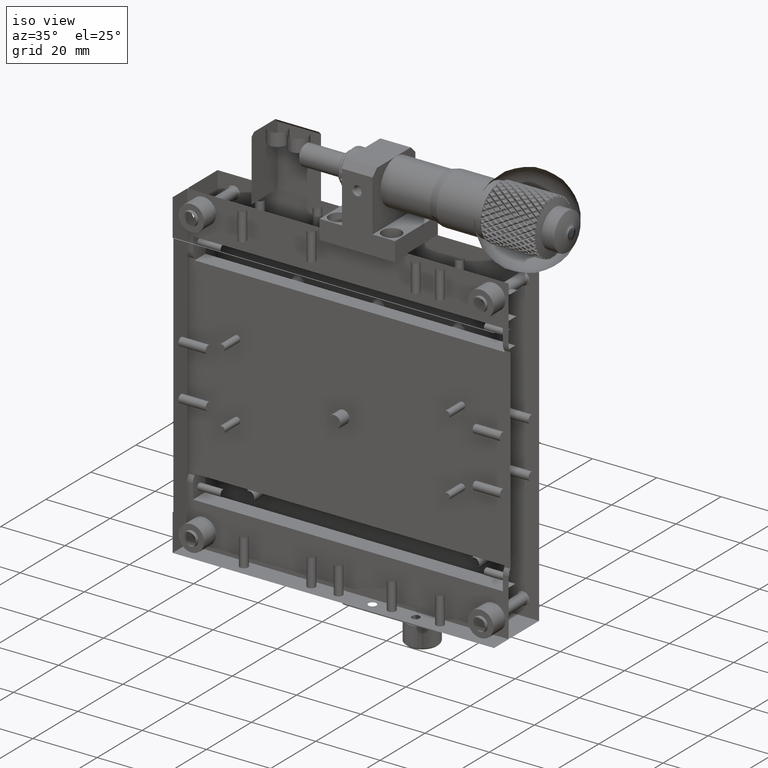
[diagram: clean part render]
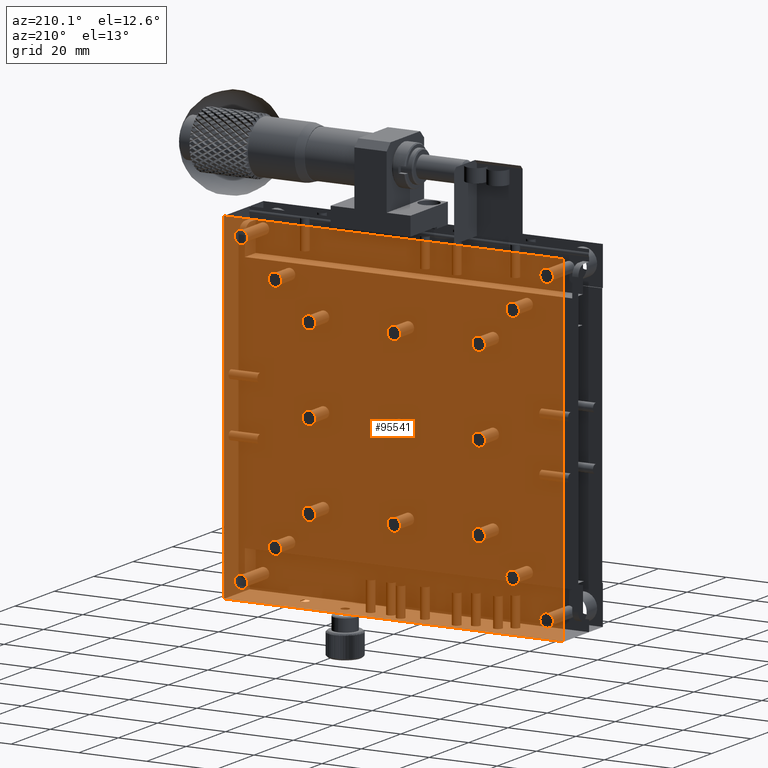
[diagram: tour spotlight — one face highlighted and labeled with its STEP entity id]
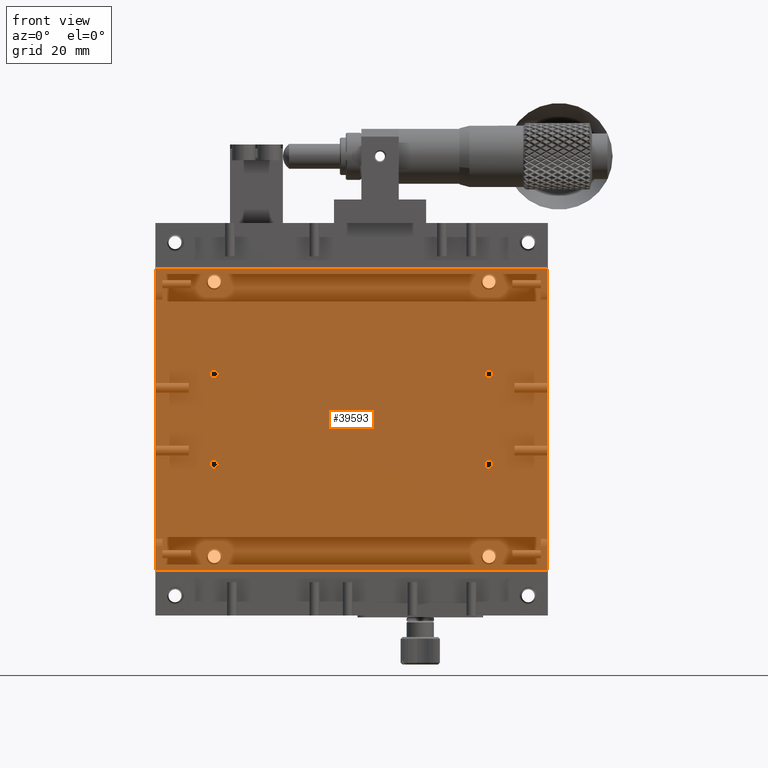
[diagram: tour spotlight — one face highlighted and labeled with its STEP entity id]
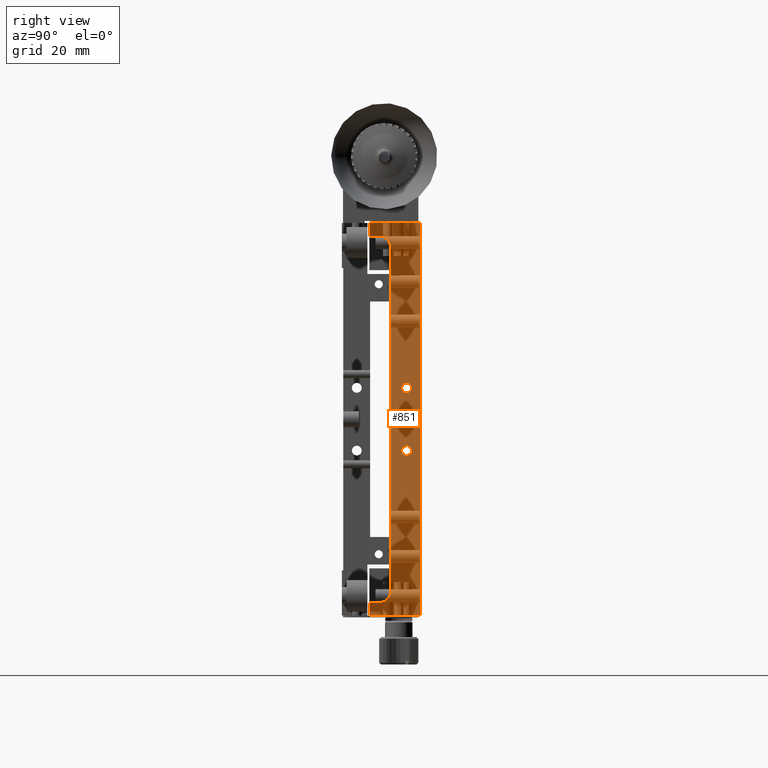
[diagram: tour spotlight — one face highlighted and labeled with its STEP entity id]
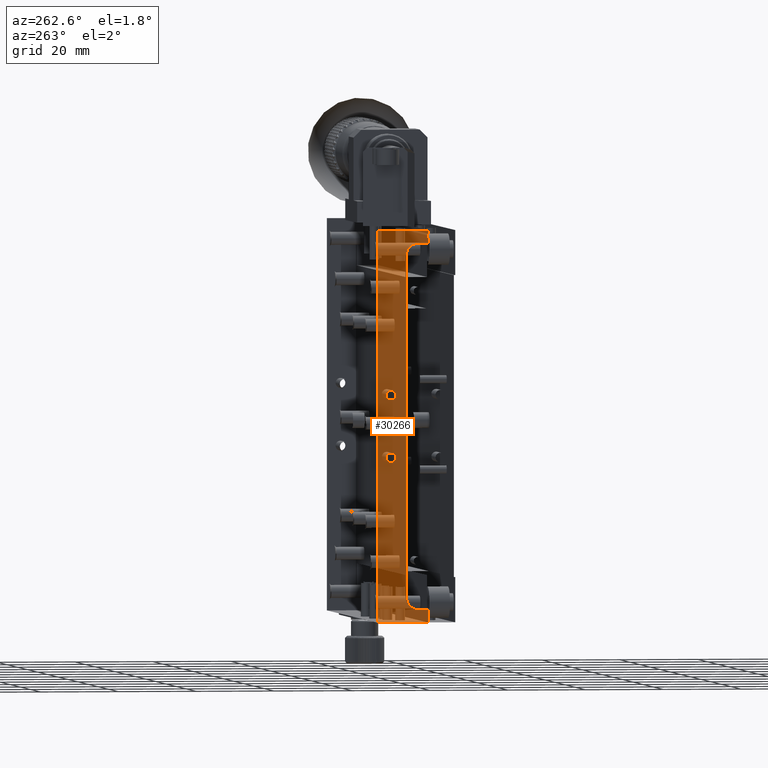
[diagram: tour spotlight — one face highlighted and labeled with its STEP entity id]
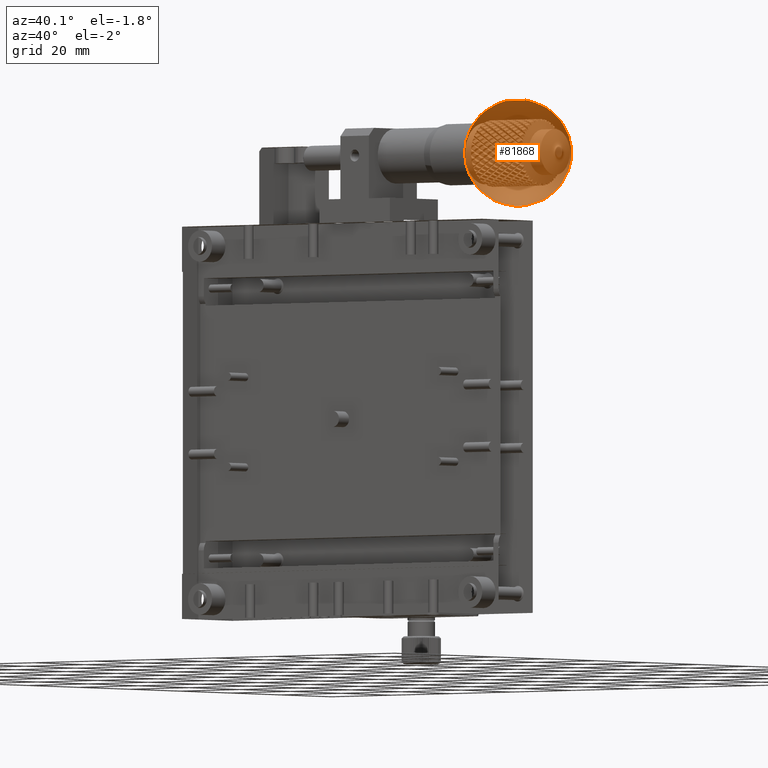
[diagram: tour spotlight — one face highlighted and labeled with its STEP entity id]
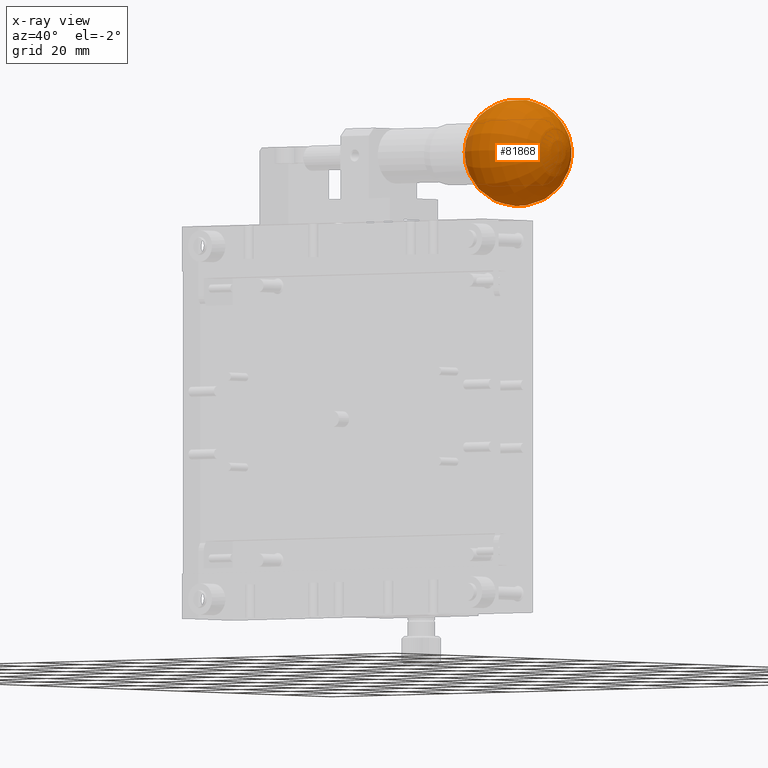
[diagram: x-ray of the same camera — body ghosted, this tour face saturated]
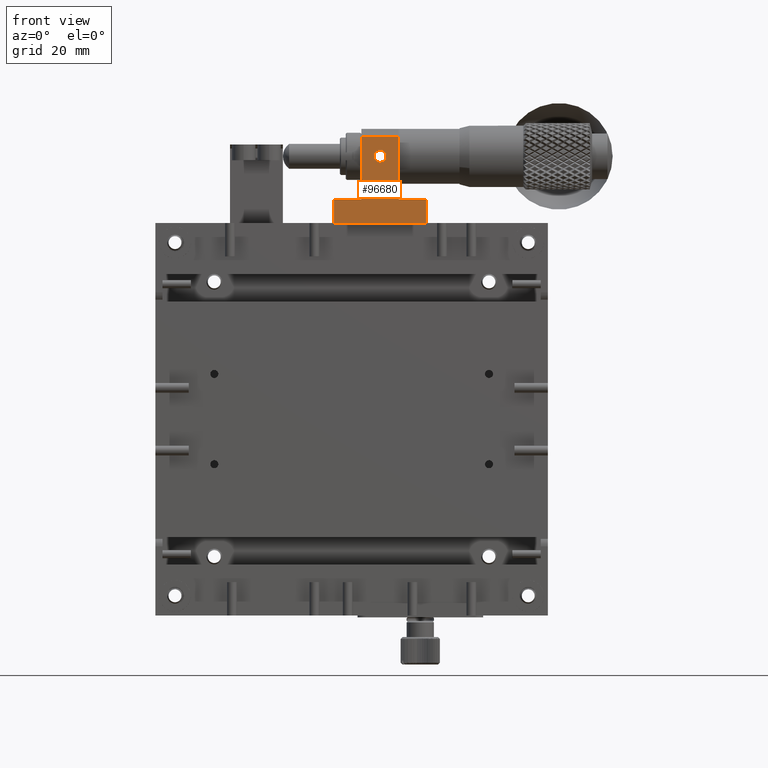
[diagram: tour spotlight — one face highlighted and labeled with its STEP entity id]
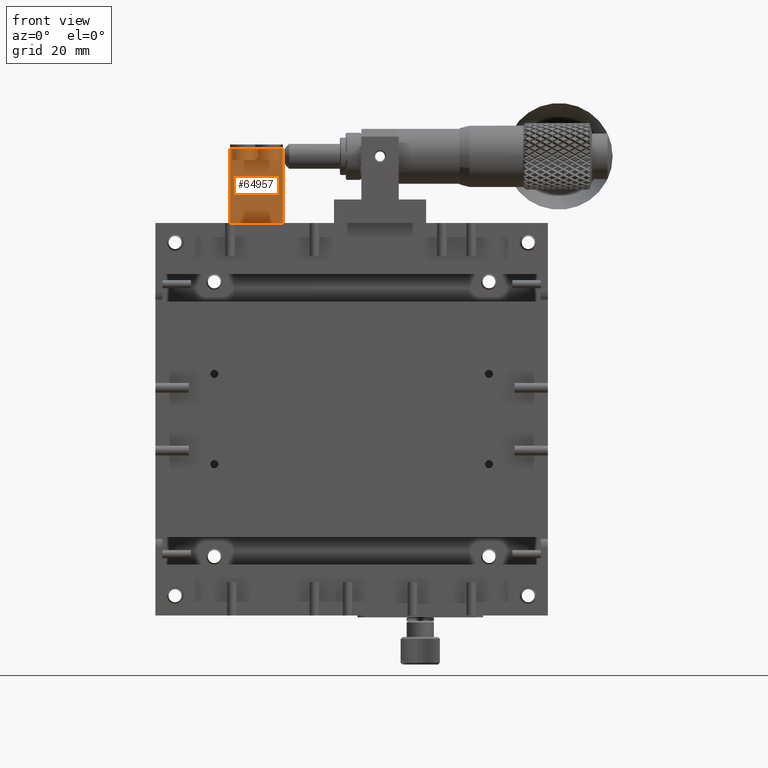
[diagram: tour spotlight — one face highlighted and labeled with its STEP entity id]
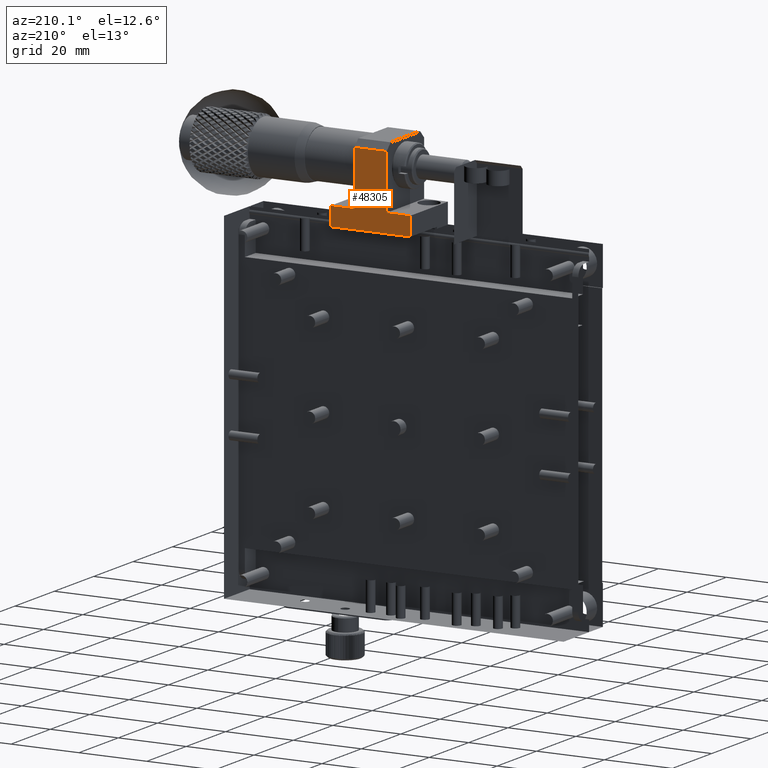
[diagram: tour spotlight — one face highlighted and labeled with its STEP entity id]
A machine part: a face-by-face anatomy tour. The part has 2346 B-rep faces; the first image is the clean iso view, then the 8 largest visible faces are spotlighted one at a time (largest first), each with its STEP entity span.

Face 1 — auxiliary view, entity #95541. In plain terms, the highlighted planar face has unit normal (-0, -1, 0).
Definition (entity closure, byte-faithful):
#220 = DIRECTION ( 'NONE',  ( 0.000000000000000000, 1.000000000000000000, -4.336808690058668077E-16 ) ) ;
#230 = DIRECTION ( 'NONE',  ( 2.168404344940586940E-16, 1.000000000000000000, 3.761581922525769846E-31 ) ) ;
#337 = EDGE_LOOP ( 'NONE', ( #62245 ) ) ;
#774 = CARTESIAN_POINT ( 'NONE',  ( -36.19890064642102345, 5.209050023397070461, 1.250000000638491971E-05 ) ) ;
#931 = EDGE_LOOP ( 'NONE', ( #89675 ) ) ;
#2467 = EDGE_LOOP ( 'NONE', ( #47779 ) ) ;
#2722 = DIRECTION ( 'NONE',  ( 1.000000000000000000, -1.110223024625156047E-16, 0.000000000000000000 ) ) ;
#3763 = CARTESIAN_POINT ( 'NONE',  ( 58.80109935357898365, 5.209050023435933596, 45.00001249999999686 ) ) ;
#4676 = CARTESIAN_POINT ( 'NONE',  ( 48.80109935357897655, 5.209050023338150481, -34.99998749999998893 ) ) ;
#4716 = CARTESIAN_POINT ( 'NONE',  ( 63.80109935357896944, 5.209050023397058027, 50.00001249999999686 ) ) ;
#5219 = ORIENTED_EDGE ( 'NONE', *, *, #13778, .T. ) ;
#5517 = CARTESIAN_POINT ( 'NONE',  ( 58.80109935357898365, 5.209050023404084406, -44.99998749999998182 ) ) ;
#5587 = EDGE_LOOP ( 'NONE', ( #21133 ) ) ;
#5773 = FACE_BOUND ( 'NONE', #31592, .T. ) ;
#5833 = CIRCLE ( 'NONE', #79269, 1.999999999952706276 ) ;
#6732 = CIRCLE ( 'NONE', #95770, 2.000000000009549694 ) ;
#6787 = CARTESIAN_POINT ( 'NONE',  ( -36.19890064642102345, 5.209050023397072238, -49.99998749999998182 ) ) ;
#6946 = ORIENTED_EDGE ( 'NONE', *, *, #28106, .T. ) ;
#7227 = FACE_BOUND ( 'NONE', #25851, .T. ) ;
#7296 = DIRECTION ( 'NONE',  ( -1.000000000000000000, 4.336808689921310137E-16, 0.000000000000000000 ) ) ;
#7599 = CIRCLE ( 'NONE', #16969, 2.000000000009549694 ) ;
#7833 = DIRECTION ( 'NONE',  ( 0.000000000000000000, 0.000000000000000000, 1.000000000000000000 ) ) ;
#9251 = AXIS2_PLACEMENT_3D ( 'NONE', #12865, #55895, #78428 ) ;
#9399 = EDGE_CURVE ( 'NONE', #48903, #48903, #74582, .T. ) ;
#9726 = VERTEX_POINT ( 'NONE', #54209 ) ;
#10200 = EDGE_CURVE ( 'NONE', #85140, #85140, #32462, .T. ) ;
#10695 = CARTESIAN_POINT ( 'NONE',  ( 13.80109935357898543, 5.209050023340434876, 27.00001250000955011 ) ) ;
#11272 = VERTEX_POINT ( 'NONE', #4716 ) ;
#11300 = CARTESIAN_POINT ( 'NONE',  ( -33.19890064643055894, 5.209050023404085294, -44.99998749999998182 ) ) ;
#12072 = AXIS2_PLACEMENT_3D ( 'NONE', #23429, #46319, #7296 ) ;
#12865 = CARTESIAN_POINT ( 'NONE',  ( -11.19890064642101102, 5.209050023442744148, -24.99998749999998893 ) ) ;
#13778 = EDGE_CURVE ( 'NONE', #33303, #33303, #7599, .T. ) ;
#14320 = CIRCLE ( 'NONE', #87756, 1.999999999999988010 ) ;
#14328 = ORIENTED_EDGE ( 'NONE', *, *, #16119, .T. ) ;
#14425 = DIRECTION ( 'NONE',  ( -1.000000000000000000, 4.336808689757906475E-16, 0.000000000000000000 ) ) ;
#14576 = VERTEX_POINT ( 'NONE', #59064 ) ;
#14692 = VERTEX_POINT ( 'NONE', #82169 ) ;
#15300 = LINE ( 'NONE', #59311, #55954 ) ;
#16119 = EDGE_CURVE ( 'NONE', #46677, #44457, #75105, .T. ) ;
#16449 = CARTESIAN_POINT ( 'NONE',  ( 13.80109935357898365, 5.209050023397065132, 1.250000000638491971E-05 ) ) ;
#16918 = EDGE_LOOP ( 'NONE', ( #6946 ) ) ;
#16937 = DIRECTION ( 'NONE',  ( 1.110223024625156294E-16, 1.000000000000000000, -4.567142844767032121E-17 ) ) ;
#16969 = AXIS2_PLACEMENT_3D ( 'NONE', #91158, #31010, #82380 ) ;
#17291 = EDGE_LOOP ( 'NONE', ( #69853 ) ) ;
#17454 = AXIS2_PLACEMENT_3D ( 'NONE', #5517, #66182, #49979 ) ;
#18540 = AXIS2_PLACEMENT_3D ( 'NONE', #30062, #230, #14425 ) ;
#18871 = CARTESIAN_POINT ( 'NONE',  ( 13.80109935357898365, 5.209050023397062468, -49.99998749999998182 ) ) ;
#19622 = DIRECTION ( 'NONE',  ( 0.000000000000000000, 1.000000000000000000, -4.336808690058668077E-16 ) ) ;
#19777 = VERTEX_POINT ( 'NONE', #28473 ) ;
#20074 = EDGE_LOOP ( 'NONE', ( #58609 ) ) ;
#20456 = FACE_BOUND ( 'NONE', #65174, .T. ) ;
#20730 = EDGE_CURVE ( 'NONE', #72911, #72911, #45269, .T. ) ;
#20755 = DIRECTION ( 'NONE',  ( 0.000000000000000000, 0.000000000000000000, 1.000000000000000000 ) ) ;
#21133 = ORIENTED_EDGE ( 'NONE', *, *, #32606, .T. ) ;
#21419 = FACE_BOUND ( 'NONE', #74426, .T. ) ;
#21651 = DIRECTION ( 'NONE',  ( 5.070547143012392776E-33, 4.567142844767030888E-17, 1.000000000000000000 ) ) ;
#22001 = AXIS2_PLACEMENT_3D ( 'NONE', #67238, #220, #37849 ) ;
#22134 = CIRCLE ( 'NONE', #64299, 1.999999999952706276 ) ;
#22494 = VERTEX_POINT ( 'NONE', #57728 ) ;
#22672 = DIRECTION ( 'NONE',  ( 0.000000000000000000, 1.000000000000000000, -0.000000000000000000 ) ) ;
#22790 = EDGE_CURVE ( 'NONE', #96361, #96361, #79786, .T. ) ;
#23120 = AXIS2_PLACEMENT_3D ( 'NONE', #57694, #87530, #43500 ) ;
#23429 = CARTESIAN_POINT ( 'NONE',  ( -31.19890064642100924, 5.209050023404084406, -44.99998749999998182 ) ) ;
#23446 = CARTESIAN_POINT ( 'NONE',  ( 38.80109935357898365, 5.209050023397277407, 25.00001250000000041 ) ) ;
#23525 = CIRCLE ( 'NONE', #17454, 2.000000000009549694 ) ;
#24342 = DIRECTION ( 'NONE',  ( 0.000000000000000000, 0.000000000000000000, 1.000000000000000000 ) ) ;
#24428 = DIRECTION ( 'NONE',  ( 0.000000000000000000, 1.000000000000000000, -0.000000000000000000 ) ) ;
#25288 = EDGE_CURVE ( 'NONE', #22494, #22494, #22134, .T. ) ;
#25851 = EDGE_LOOP ( 'NONE', ( #77549 ) ) ;
#26289 = ORIENTED_EDGE ( 'NONE', *, *, #22790, .T. ) ;
#26477 = EDGE_CURVE ( 'NONE', #14692, #14692, #23525, .T. ) ;
#26854 = EDGE_CURVE ( 'NONE', #36205, #36205, #45321, .T. ) ;
#27928 = AXIS2_PLACEMENT_3D ( 'NONE', #90483, #24428, #7833 ) ;
#28026 = EDGE_CURVE ( 'NONE', #11272, #46677, #96338, .T. ) ;
#28106 = EDGE_CURVE ( 'NONE', #66075, #66075, #79779, .T. ) ;
#28288 = FACE_BOUND ( 'NONE', #931, .T. ) ;
#28301 = DIRECTION ( 'NONE',  ( -1.110223024625156047E-16, -1.000000000000000000, 4.567142844767030888E-17 ) ) ;
#28346 = ORIENTED_EDGE ( 'NONE', *, *, #93741, .T. ) ;
#28473 = CARTESIAN_POINT ( 'NONE',  ( 63.80109935357896944, 5.209050023397058915, -49.99998749999998182 ) ) ;
#29825 = VECTOR ( 'NONE', #88518, 1000.000000000000000 ) ;
#30062 = CARTESIAN_POINT ( 'NONE',  ( 38.80109935357898365, 5.209050023495365167, 1.250000000578045667E-05 ) ) ;
#30770 = AXIS2_PLACEMENT_3D ( 'NONE', #53395, #47449, #76860 ) ;
#31010 = DIRECTION ( 'NONE',  ( 0.000000000000000000, 1.000000000000000000, -4.336808689955134521E-16 ) ) ;
#31592 = EDGE_LOOP ( 'NONE', ( #82476 ) ) ;
#32218 = VECTOR ( 'NONE', #2722, 1000.000000000000000 ) ;
#32462 = CIRCLE ( 'NONE', #23120, 2.000000000123236532 ) ;
#32606 = EDGE_CURVE ( 'NONE', #43043, #43043, #14320, .T. ) ;
#33303 = VERTEX_POINT ( 'NONE', #40626 ) ;
#35109 = FACE_OUTER_BOUND ( 'NONE', #94131, .T. ) ;
#35535 = EDGE_LOOP ( 'NONE', ( #26289 ) ) ;
#36205 = VERTEX_POINT ( 'NONE', #65577 ) ;
#36223 = CARTESIAN_POINT ( 'NONE',  ( 48.80109935357897655, 5.209050023445024102, 35.00001250000000397 ) ) ;
#37053 = FACE_BOUND ( 'NONE', #2467, .T. ) ;
#37849 = DIRECTION ( 'NONE',  ( 0.000000000000000000, 4.336808689921310137E-16, 1.000000000000000000 ) ) ;
#39052 = DIRECTION ( 'NONE',  ( 0.000000000000000000, 1.000000000000000000, -4.336808689955137972E-16 ) ) ;
#40626 = CARTESIAN_POINT ( 'NONE',  ( -11.19890064642101102, 5.209050023397278295, 27.00001250000955011 ) ) ;
#41482 = CARTESIAN_POINT ( 'NONE',  ( 46.80109935362627027, 5.209050023338151370, -34.99998749999998893 ) ) ;
#42080 = CARTESIAN_POINT ( 'NONE',  ( -13.19890064654424755, 5.209050023533696283, 1.250000000708149928E-05 ) ) ;
#42929 = FACE_BOUND ( 'NONE', #69398, .T. ) ;
#42941 = FACE_BOUND ( 'NONE', #64881, .T. ) ;
#43019 = ORIENTED_EDGE ( 'NONE', *, *, #94083, .T. ) ;
#43043 = VERTEX_POINT ( 'NONE', #51813 ) ;
#43419 = CARTESIAN_POINT ( 'NONE',  ( -31.19890064642100924, 5.209050023435933596, 47.00001250000954656 ) ) ;
#43500 = DIRECTION ( 'NONE',  ( -1.000000000000000000, 4.336808689674791104E-16, 0.000000000000000000 ) ) ;
#43901 = FACE_BOUND ( 'NONE', #17291, .T. ) ;
#44381 = FACE_BOUND ( 'NONE', #72864, .T. ) ;
#44457 = VERTEX_POINT ( 'NONE', #6787 ) ;
#44664 = ORIENTED_EDGE ( 'NONE', *, *, #77129, .T. ) ;
#45136 = ORIENTED_EDGE ( 'NONE', *, *, #26854, .T. ) ;
#45269 = CIRCLE ( 'NONE', #22001, 2.000000000009549694 ) ;
#45321 = CIRCLE ( 'NONE', #78194, 2.000000000066393113 ) ;
#46319 = DIRECTION ( 'NONE',  ( 2.168404345046577059E-16, 1.000000000000000000, -0.000000000000000000 ) ) ;
#46677 = VERTEX_POINT ( 'NONE', #57517 ) ;
#47309 = DIRECTION ( 'NONE',  ( 0.000000000000000000, 4.336808689921310137E-16, 1.000000000000000000 ) ) ;
#47449 = DIRECTION ( 'NONE',  ( 0.000000000000000000, 1.000000000000000000, -4.336808690201649609E-16 ) ) ;
#47779 = ORIENTED_EDGE ( 'NONE', *, *, #9399, .T. ) ;
#48148 = CIRCLE ( 'NONE', #18540, 2.000000000084906304 ) ;
#48903 = VERTEX_POINT ( 'NONE', #11300 ) ;
#49979 = DIRECTION ( 'NONE',  ( -1.000000000000000000, 4.336808689921310137E-16, 0.000000000000000000 ) ) ;
#50235 = EDGE_CURVE ( 'NONE', #9726, #9726, #57961, .T. ) ;
#50370 = CARTESIAN_POINT ( 'NONE',  ( 38.80109935357898365, 5.209050023442744148, -22.99998749999043923 ) ) ;
#50390 = DIRECTION ( 'NONE',  ( 0.000000000000000000, 4.336808689921310137E-16, 1.000000000000000000 ) ) ;
#51343 = AXIS2_PLACEMENT_3D ( 'NONE', #87956, #28301, #87464 ) ;
#51704 = PLANE ( 'NONE',  #51343 ) ;
#51813 = CARTESIAN_POINT ( 'NONE',  ( 11.80109935357899609, 5.209050023397065132, 1.250000000638491971E-05 ) ) ;
#53395 = CARTESIAN_POINT ( 'NONE',  ( 13.80109935357898543, 5.209050023340433988, 25.00001250000000041 ) ) ;
#54209 = CARTESIAN_POINT ( 'NONE',  ( 58.80109935357898365, 5.209050023435933596, 47.00001250000954656 ) ) ;
#55179 = VERTEX_POINT ( 'NONE', #74242 ) ;
#55512 = DIRECTION ( 'NONE',  ( 2.168404345098351479E-16, 1.000000000000000000, -0.000000000000000000 ) ) ;
#55895 = DIRECTION ( 'NONE',  ( 0.000000000000000000, 1.000000000000000000, -0.000000000000000000 ) ) ;
#55954 = VECTOR ( 'NONE', #21651, 1000.000000000000000 ) ;
#56946 = CARTESIAN_POINT ( 'NONE',  ( 13.80109935357898543, 5.209050023385900730, -24.99998749999998893 ) ) ;
#57136 = EDGE_CURVE ( 'NONE', #67522, #67522, #6732, .T. ) ;
#57517 = CARTESIAN_POINT ( 'NONE',  ( -36.19890064642102345, 5.209050023397067797, 50.00001249999999686 ) ) ;
#57694 = CARTESIAN_POINT ( 'NONE',  ( -11.19890064642101102, 5.209050023533695395, 1.250000000708149928E-05 ) ) ;
#57728 = CARTESIAN_POINT ( 'NONE',  ( -23.19890064637371907, 5.209050023338151370, -34.99998749999998893 ) ) ;
#57961 = CIRCLE ( 'NONE', #89261, 2.000000000009549694 ) ;
#58585 = FACE_BOUND ( 'NONE', #337, .T. ) ;
#58609 = ORIENTED_EDGE ( 'NONE', *, *, #25288, .T. ) ;
#58670 = CARTESIAN_POINT ( 'NONE',  ( 13.80109935357898365, 5.209050023397067797, 50.00001249999999686 ) ) ;
#59064 = CARTESIAN_POINT ( 'NONE',  ( -11.19890064642101102, 5.209050023442744148, -22.99998749999043923 ) ) ;
#59077 = FACE_BOUND ( 'NONE', #20074, .T. ) ;
#59311 = CARTESIAN_POINT ( 'NONE',  ( 63.80109935357896944, 5.209050023397059803, 1.250000000638491971E-05 ) ) ;
#59608 = CARTESIAN_POINT ( 'NONE',  ( -21.19890064642101279, 5.209050023338150481, -34.99998749999998893 ) ) ;
#60963 = DIRECTION ( 'NONE',  ( -1.000000000000000000, 0.000000000000000000, 0.000000000000000000 ) ) ;
#62245 = ORIENTED_EDGE ( 'NONE', *, *, #26477, .T. ) ;
#62533 = VERTEX_POINT ( 'NONE', #10695 ) ;
#64190 = ORIENTED_EDGE ( 'NONE', *, *, #10200, .T. ) ;
#64236 = AXIS2_PLACEMENT_3D ( 'NONE', #65267, #22672, #20755 ) ;
#64299 = AXIS2_PLACEMENT_3D ( 'NONE', #59608, #80644, #89449 ) ;
#64301 = DIRECTION ( 'NONE',  ( 0.000000000000000000, 1.000000000000000000, -0.000000000000000000 ) ) ;
#64881 = EDGE_LOOP ( 'NONE', ( #82510 ) ) ;
#65174 = EDGE_LOOP ( 'NONE', ( #67253 ) ) ;
#65267 = CARTESIAN_POINT ( 'NONE',  ( 38.80109935357898365, 5.209050023442744148, -24.99998749999998893 ) ) ;
#65457 = FACE_BOUND ( 'NONE', #92949, .T. ) ;
#65577 = CARTESIAN_POINT ( 'NONE',  ( 13.80109935357898543, 5.209050023385900730, -22.99998749993359581 ) ) ;
#66075 = VERTEX_POINT ( 'NONE', #81199 ) ;
#66182 = DIRECTION ( 'NONE',  ( 2.168404345046573361E-16, 1.000000000000000000, -0.000000000000000000 ) ) ;
#66450 = EDGE_CURVE ( 'NONE', #44457, #19777, #70234, .T. ) ;
#67238 = CARTESIAN_POINT ( 'NONE',  ( -21.19890064642101279, 5.209050023445024102, 35.00001250000000397 ) ) ;
#67253 = ORIENTED_EDGE ( 'NONE', *, *, #57136, .T. ) ;
#67522 = VERTEX_POINT ( 'NONE', #68000 ) ;
#68000 = CARTESIAN_POINT ( 'NONE',  ( 48.80109935357897655, 5.209050023445024991, 37.00001250000955366 ) ) ;
#68501 = CIRCLE ( 'NONE', #27928, 2.000000000009549694 ) ;
#68844 = AXIS2_PLACEMENT_3D ( 'NONE', #23446, #39052, #47309 ) ;
#69398 = EDGE_LOOP ( 'NONE', ( #45136 ) ) ;
#69853 = ORIENTED_EDGE ( 'NONE', *, *, #50235, .T. ) ;
#70234 = LINE ( 'NONE', #18871, #32218 ) ;
#70547 = EDGE_CURVE ( 'NONE', #62533, #62533, #74550, .T. ) ;
#72864 = EDGE_LOOP ( 'NONE', ( #64190 ) ) ;
#72911 = VERTEX_POINT ( 'NONE', #80709 ) ;
#73104 = DIRECTION ( 'NONE',  ( 0.000000000000000000, 0.000000000000000000, 1.000000000000000000 ) ) ;
#74242 = CARTESIAN_POINT ( 'NONE',  ( 36.80109935349408090, 5.209050023495366055, 1.250000000578045667E-05 ) ) ;
#74426 = EDGE_LOOP ( 'NONE', ( #43019 ) ) ;
#74550 = CIRCLE ( 'NONE', #30770, 2.000000000009549694 ) ;
#74582 = CIRCLE ( 'NONE', #12072, 2.000000000009549694 ) ;
#75105 = LINE ( 'NONE', #774, #87336 ) ;
#75854 = ORIENTED_EDGE ( 'NONE', *, *, #66450, .T. ) ;
#76860 = DIRECTION ( 'NONE',  ( 0.000000000000000000, 4.336808689921310137E-16, 1.000000000000000000 ) ) ;
#77129 = EDGE_CURVE ( 'NONE', #92381, #92381, #5833, .T. ) ;
#77549 = ORIENTED_EDGE ( 'NONE', *, *, #84857, .T. ) ;
#77612 = DIRECTION ( 'NONE',  ( 0.000000000000000000, 1.000000000000000000, -0.000000000000000000 ) ) ;
#78194 = AXIS2_PLACEMENT_3D ( 'NONE', #56946, #64301, #73104 ) ;
#78428 = DIRECTION ( 'NONE',  ( 0.000000000000000000, 0.000000000000000000, 1.000000000000000000 ) ) ;
#79269 = AXIS2_PLACEMENT_3D ( 'NONE', #4676, #55512, #94182 ) ;
#79779 = CIRCLE ( 'NONE', #68844, 2.000000000009549694 ) ;
#79786 = CIRCLE ( 'NONE', #64236, 2.000000000009549694 ) ;
#80116 = VERTEX_POINT ( 'NONE', #43419 ) ;
#80644 = DIRECTION ( 'NONE',  ( 2.168404345098353205E-16, 1.000000000000000000, -0.000000000000000000 ) ) ;
#80709 = CARTESIAN_POINT ( 'NONE',  ( -21.19890064642101279, 5.209050023445024991, 37.00001250000955366 ) ) ;
#81199 = CARTESIAN_POINT ( 'NONE',  ( 38.80109935357898365, 5.209050023397278295, 27.00001250000955011 ) ) ;
#82068 = FACE_BOUND ( 'NONE', #16918, .T. ) ;
#82169 = CARTESIAN_POINT ( 'NONE',  ( 56.80109935356943396, 5.209050023404085294, -44.99998749999998182 ) ) ;
#82380 = DIRECTION ( 'NONE',  ( 0.000000000000000000, 4.336808689921310137E-16, 1.000000000000000000 ) ) ;
#82476 = ORIENTED_EDGE ( 'NONE', *, *, #70547, .T. ) ;
#82510 = ORIENTED_EDGE ( 'NONE', *, *, #88294, .T. ) ;
#84857 = EDGE_CURVE ( 'NONE', #55179, #55179, #48148, .T. ) ;
#85140 = VERTEX_POINT ( 'NONE', #42080 ) ;
#87336 = VECTOR ( 'NONE', #90745, 1000.000000000000000 ) ;
#87455 = FACE_BOUND ( 'NONE', #35535, .T. ) ;
#87464 = DIRECTION ( 'NONE',  ( 1.000000000000000000, -1.110223024625156047E-16, 0.000000000000000000 ) ) ;
#87530 = DIRECTION ( 'NONE',  ( 2.168404344940584229E-16, 1.000000000000000000, -0.000000000000000000 ) ) ;
#87756 = AXIS2_PLACEMENT_3D ( 'NONE', #16449, #16937, #60963 ) ;
#87956 = CARTESIAN_POINT ( 'NONE',  ( 13.80109935357898365, 5.209050023397065132, 1.250000000638491971E-05 ) ) ;
#88294 = EDGE_CURVE ( 'NONE', #14576, #14576, #93590, .T. ) ;
#88518 = DIRECTION ( 'NONE',  ( -1.000000000000000000, 1.110223024625156047E-16, -0.000000000000000000 ) ) ;
#89261 = AXIS2_PLACEMENT_3D ( 'NONE', #3763, #77612, #24342 ) ;
#89449 = DIRECTION ( 'NONE',  ( -1.000000000000000000, 4.336808690044569654E-16, 0.000000000000000000 ) ) ;
#89675 = ORIENTED_EDGE ( 'NONE', *, *, #20730, .T. ) ;
#90483 = CARTESIAN_POINT ( 'NONE',  ( -31.19890064642100924, 5.209050023435933596, 45.00001249999999686 ) ) ;
#90745 = DIRECTION ( 'NONE',  ( -5.070547143012392776E-33, -4.567142844767030888E-17, -1.000000000000000000 ) ) ;
#91158 = CARTESIAN_POINT ( 'NONE',  ( -11.19890064642101102, 5.209050023397277407, 25.00001250000000041 ) ) ;
#92240 = ORIENTED_EDGE ( 'NONE', *, *, #28026, .T. ) ;
#92381 = VERTEX_POINT ( 'NONE', #41482 ) ;
#92949 = EDGE_LOOP ( 'NONE', ( #44664 ) ) ;
#93590 = CIRCLE ( 'NONE', #9251, 2.000000000009549694 ) ;
#93741 = EDGE_CURVE ( 'NONE', #19777, #11272, #15300, .T. ) ;
#93909 = EDGE_LOOP ( 'NONE', ( #5219 ) ) ;
#94083 = EDGE_CURVE ( 'NONE', #80116, #80116, #68501, .T. ) ;
#94131 = EDGE_LOOP ( 'NONE', ( #14328, #75854, #28346, #92240 ) ) ;
#94182 = DIRECTION ( 'NONE',  ( -1.000000000000000000, 4.336808690044569654E-16, 0.000000000000000000 ) ) ;
#94785 = FACE_BOUND ( 'NONE', #5587, .T. ) ;
#95541 = ADVANCED_FACE ( 'NONE', ( #35109, #94785, #87455, #20456, #42929, #5773, #65457, #28288, #59077, #58585, #82068, #43901, #44381, #42941, #7227, #37053, #21419, #96250 ), #51704, .T. ) ;
#95770 = AXIS2_PLACEMENT_3D ( 'NONE', #36223, #19622, #50390 ) ;
#96250 = FACE_BOUND ( 'NONE', #93909, .T. ) ;
#96338 = LINE ( 'NONE', #58670, #29825 ) ;
#96361 = VERTEX_POINT ( 'NONE', #50370 ) ;

Face 2 — front view, entity #39593. In plain terms, the highlighted planar face has unit normal (0, 1, 0).
Definition (entity closure, byte-faithful):
#335 = DIRECTION ( 'NONE',  ( -1.000000000000000000, -0.000000000000000000, 0.000000000000000000 ) ) ;
#970 = VERTEX_POINT ( 'NONE', #30788 ) ;
#3548 = ORIENTED_EDGE ( 'NONE', *, *, #36753, .T. ) ;
#4495 = AXIS2_PLACEMENT_3D ( 'NONE', #53742, #7325, #22973 ) ;
#7325 = DIRECTION ( 'NONE',  ( -0.000000000000000000, -1.000000000000000000, 4.688441826964343682E-17 ) ) ;
#7331 = CARTESIAN_POINT ( 'NONE',  ( -21.19890064642100214, -14.44094997660293522, 12.52501249999997057 ) ) ;
#7926 = AXIS2_PLACEMENT_3D ( 'NONE', #21284, #15415, #68242 ) ;
#8551 = PLANE ( 'NONE',  #7926 ) ;
#9731 = ORIENTED_EDGE ( 'NONE', *, *, #93155, .T. ) ;
#9845 = CIRCLE ( 'NONE', #33307, 1.999999999999988676 ) ;
#10359 = ORIENTED_EDGE ( 'NONE', *, *, #53163, .T. ) ;
#11016 = CARTESIAN_POINT ( 'NONE',  ( -21.19890064642100214, -14.44094997660293522, 11.50001249999999331 ) ) ;
#12634 = VERTEX_POINT ( 'NONE', #87456 ) ;
#12697 = EDGE_LOOP ( 'NONE', ( #57431 ) ) ;
#14210 = VERTEX_POINT ( 'NONE', #7331 ) ;
#14755 = VERTEX_POINT ( 'NONE', #73932 ) ;
#15148 = ORIENTED_EDGE ( 'NONE', *, *, #80115, .T. ) ;
#15415 = DIRECTION ( 'NONE',  ( 0.000000000000000000, 1.000000000000000000, 0.000000000000000000 ) ) ;
#15904 = VECTOR ( 'NONE', #85769, 1000.000000000000000 ) ;
#16594 = VERTEX_POINT ( 'NONE', #38112 ) ;
#17820 = CARTESIAN_POINT ( 'NONE',  ( -36.19890064642100924, -14.44094997660293522, 38.50001249999998265 ) ) ;
#17837 = CARTESIAN_POINT ( 'NONE',  ( 63.80109935357899786, -14.44094997660293522, 38.50001249999998265 ) ) ;
#20352 = DIRECTION ( 'NONE',  ( -0.000000000000000000, -1.000000000000000000, -0.000000000000000000 ) ) ;
#20707 = DIRECTION ( 'NONE',  ( 0.000000000000000000, 0.000000000000000000, 1.000000000000000000 ) ) ;
#21177 = DIRECTION ( 'NONE',  ( -0.000000000000000000, -1.000000000000000000, 4.688441826964343682E-17 ) ) ;
#21284 = CARTESIAN_POINT ( 'NONE',  ( 63.80109935357899786, -14.44094997660293522, 38.50001249999998265 ) ) ;
#22973 = DIRECTION ( 'NONE',  ( 0.000000000000000000, 0.000000000000000000, 1.000000000000000000 ) ) ;
#23191 = CIRCLE ( 'NONE', #24777, 1.024999999999977263 ) ;
#24777 = AXIS2_PLACEMENT_3D ( 'NONE', #55529, #68356, #70257 ) ;
#25771 = CARTESIAN_POINT ( 'NONE',  ( 13.80109935357899964, -14.44094997660293700, 1.249999999342055190E-05 ) ) ;
#26158 = DIRECTION ( 'NONE',  ( 1.000000000000000000, 0.000000000000000000, -0.000000000000000000 ) ) ;
#26379 = CIRCLE ( 'NONE', #4495, 1.024999999999977263 ) ;
#28539 = CARTESIAN_POINT ( 'NONE',  ( 48.80109935357899786, -14.44094997660293522, 11.50001249999999331 ) ) ;
#29629 = EDGE_CURVE ( 'NONE', #14210, #14210, #86139, .T. ) ;
#30473 = CARTESIAN_POINT ( 'NONE',  ( -36.19890064642100924, -14.44094997660293522, -38.49998749999999603 ) ) ;
#30788 = CARTESIAN_POINT ( 'NONE',  ( 13.80109935357899964, -14.44094997660293700, -1.999987499999995366 ) ) ;
#32701 = LINE ( 'NONE', #70883, #42107 ) ;
#33015 = DIRECTION ( 'NONE',  ( 0.000000000000000000, 0.000000000000000000, 1.000000000000000000 ) ) ;
#33171 = CIRCLE ( 'NONE', #48691, 1.024999999999977263 ) ;
#33307 = AXIS2_PLACEMENT_3D ( 'NONE', #25771, #20352, #64377 ) ;
#33674 = DIRECTION ( 'NONE',  ( -0.000000000000000000, 0.000000000000000000, -1.000000000000000000 ) ) ;
#36753 = EDGE_CURVE ( 'NONE', #66475, #14755, #32701, .T. ) ;
#38112 = CARTESIAN_POINT ( 'NONE',  ( 48.80109935357899786, -14.44094997660293522, 12.52501249999997057 ) ) ;
#39593 = ADVANCED_FACE ( 'NONE', ( #63884, #64361, #94200, #57498, #87334, #60397 ), #8551, .T. ) ;
#39936 = ORIENTED_EDGE ( 'NONE', *, *, #85459, .T. ) ;
#40830 = DIRECTION ( 'NONE',  ( -0.000000000000000000, -1.000000000000000000, 4.688441826964343682E-17 ) ) ;
#42107 = VECTOR ( 'NONE', #33674, 1000.000000000000000 ) ;
#47665 = EDGE_LOOP ( 'NONE', ( #9731 ) ) ;
#48691 = AXIS2_PLACEMENT_3D ( 'NONE', #28539, #21177, #20707 ) ;
#51100 = EDGE_CURVE ( 'NONE', #69829, #79014, #55918, .T. ) ;
#51617 = ORIENTED_EDGE ( 'NONE', *, *, #57576, .T. ) ;
#53163 = EDGE_CURVE ( 'NONE', #16594, #16594, #33171, .T. ) ;
#53742 = CARTESIAN_POINT ( 'NONE',  ( -21.19890064642100214, -14.44094997660293522, -11.49998750000000669 ) ) ;
#55529 = CARTESIAN_POINT ( 'NONE',  ( 48.80109935357899786, -14.44094997660293522, -11.49998750000000669 ) ) ;
#55651 = VECTOR ( 'NONE', #26158, 1000.000000000000000 ) ;
#55918 = LINE ( 'NONE', #17820, #15904 ) ;
#57431 = ORIENTED_EDGE ( 'NONE', *, *, #29629, .T. ) ;
#57498 = FACE_BOUND ( 'NONE', #84246, .T. ) ;
#57576 = EDGE_CURVE ( 'NONE', #970, #970, #9845, .T. ) ;
#60397 = FACE_BOUND ( 'NONE', #62216, .T. ) ;
#62216 = EDGE_LOOP ( 'NONE', ( #10359 ) ) ;
#62316 = LINE ( 'NONE', #17837, #55651 ) ;
#62964 = EDGE_LOOP ( 'NONE', ( #51617 ) ) ;
#63884 = FACE_OUTER_BOUND ( 'NONE', #69857, .T. ) ;
#64361 = FACE_BOUND ( 'NONE', #62964, .T. ) ;
#64377 = DIRECTION ( 'NONE',  ( 0.000000000000000000, 0.000000000000000000, -1.000000000000000000 ) ) ;
#65153 = ORIENTED_EDGE ( 'NONE', *, *, #51100, .T. ) ;
#66475 = VERTEX_POINT ( 'NONE', #77547 ) ;
#67354 = LINE ( 'NONE', #71915, #82421 ) ;
#67473 = EDGE_CURVE ( 'NONE', #79014, #66475, #62316, .T. ) ;
#68242 = DIRECTION ( 'NONE',  ( 0.000000000000000000, -0.000000000000000000, 1.000000000000000000 ) ) ;
#68356 = DIRECTION ( 'NONE',  ( -0.000000000000000000, -1.000000000000000000, 4.688441826964343682E-17 ) ) ;
#69829 = VERTEX_POINT ( 'NONE', #30473 ) ;
#69857 = EDGE_LOOP ( 'NONE', ( #15148, #65153, #90950, #3548 ) ) ;
#70257 = DIRECTION ( 'NONE',  ( 0.000000000000000000, 0.000000000000000000, 1.000000000000000000 ) ) ;
#70883 = CARTESIAN_POINT ( 'NONE',  ( 63.80109935357899786, -14.44094997660293522, 38.50001249999998265 ) ) ;
#71915 = CARTESIAN_POINT ( 'NONE',  ( 63.80109935357899786, -14.44094997660293522, -38.49998749999999603 ) ) ;
#73932 = CARTESIAN_POINT ( 'NONE',  ( 63.80109935357899786, -14.44094997660293522, -38.49998749999999603 ) ) ;
#77547 = CARTESIAN_POINT ( 'NONE',  ( 63.80109935357899786, -14.44094997660293522, 38.50001249999998265 ) ) ;
#79014 = VERTEX_POINT ( 'NONE', #93943 ) ;
#80115 = EDGE_CURVE ( 'NONE', #14755, #69829, #67354, .T. ) ;
#82421 = VECTOR ( 'NONE', #335, 1000.000000000000000 ) ;
#84246 = EDGE_LOOP ( 'NONE', ( #39936 ) ) ;
#85459 = EDGE_CURVE ( 'NONE', #12634, #12634, #26379, .T. ) ;
#85769 = DIRECTION ( 'NONE',  ( 0.000000000000000000, -0.000000000000000000, 1.000000000000000000 ) ) ;
#86139 = CIRCLE ( 'NONE', #89222, 1.024999999999977263 ) ;
#87334 = FACE_BOUND ( 'NONE', #47665, .T. ) ;
#87456 = CARTESIAN_POINT ( 'NONE',  ( -21.19890064642100214, -14.44094997660293522, -10.47498750000002943 ) ) ;
#88904 = CARTESIAN_POINT ( 'NONE',  ( 48.80109935357899786, -14.44094997660293522, -10.47498750000002943 ) ) ;
#89222 = AXIS2_PLACEMENT_3D ( 'NONE', #11016, #40830, #33015 ) ;
#90950 = ORIENTED_EDGE ( 'NONE', *, *, #67473, .T. ) ;
#93155 = EDGE_CURVE ( 'NONE', #96740, #96740, #23191, .T. ) ;
#93943 = CARTESIAN_POINT ( 'NONE',  ( -36.19890064642100924, -14.44094997660293522, 38.50001249999998265 ) ) ;
#94200 = FACE_BOUND ( 'NONE', #12697, .T. ) ;
#96740 = VERTEX_POINT ( 'NONE', #88904 ) ;

Face 3 — right view, entity #851. In plain terms, the highlighted planar face has unit normal (1, -0, -0).
Definition (entity closure, byte-faithful):
#88 = LINE ( 'NONE', #82240, #73439 ) ;
#475 = ORIENTED_EDGE ( 'NONE', *, *, #40233, .F. ) ;
#851 = ADVANCED_FACE ( 'NONE', ( #72974, #50908, #14269 ), #66609, .F. ) ;
#2180 = CARTESIAN_POINT ( 'NONE',  ( 63.80109935357896944, -8.590949976602935578, 48.50001249999999686 ) ) ;
#2553 = CARTESIAN_POINT ( 'NONE',  ( 63.80109935357896944, -7.790949976602935756, 50.00001249999999686 ) ) ;
#2773 = CARTESIAN_POINT ( 'NONE',  ( 63.80109935357896944, 1.709050023397058693, -7.999987499999992480 ) ) ;
#3123 = EDGE_CURVE ( 'NONE', #93151, #13936, #57387, .T. ) ;
#3227 = VECTOR ( 'NONE', #62918, 1000.000000000000000 ) ;
#3559 = CARTESIAN_POINT ( 'NONE',  ( 63.80109935357896944, -5.290949976602939309, 43.70001249999999970 ) ) ;
#3844 = CARTESIAN_POINT ( 'NONE',  ( 63.80109935357896944, 2.959050023397046036, -7.999987499999992480 ) ) ;
#4132 = EDGE_LOOP ( 'NONE', ( #96701, #42638, #82923, #475, #6562, #47438, #66782, #90693, #82730, #4931, #41539, #47550 ) ) ;
#4205 = AXIS2_PLACEMENT_3D ( 'NONE', #72487, #96418, #79325 ) ;
#4716 = CARTESIAN_POINT ( 'NONE',  ( 63.80109935357896944, 5.209050023397058027, 50.00001249999999686 ) ) ;
#4931 = ORIENTED_EDGE ( 'NONE', *, *, #24206, .T. ) ;
#5747 = VERTEX_POINT ( 'NONE', #55834 ) ;
#6562 = ORIENTED_EDGE ( 'NONE', *, *, #37156, .F. ) ;
#8850 = DIRECTION ( 'NONE',  ( -0.000000000000000000, 1.000000000000000000, -4.567142844767030888E-17 ) ) ;
#8862 = EDGE_LOOP ( 'NONE', ( #94750 ) ) ;
#10089 = CARTESIAN_POINT ( 'NONE',  ( 63.80109935357896944, -5.290949976602938420, 46.70001249999999970 ) ) ;
#11272 = VERTEX_POINT ( 'NONE', #4716 ) ;
#11447 = DIRECTION ( 'NONE',  ( -1.110223024625156787E-16, -1.000000000000000000, -0.000000000000000000 ) ) ;
#11733 = ORIENTED_EDGE ( 'NONE', *, *, #63197, .F. ) ;
#12933 = CIRCLE ( 'NONE', #81650, 1.249999999999987121 ) ;
#13625 = CARTESIAN_POINT ( 'NONE',  ( 63.80109935357896944, -7.790949976602935756, -49.99998749999998182 ) ) ;
#13936 = VERTEX_POINT ( 'NONE', #24163 ) ;
#14269 = FACE_BOUND ( 'NONE', #34500, .T. ) ;
#14357 = VERTEX_POINT ( 'NONE', #77563 ) ;
#14372 = CARTESIAN_POINT ( 'NONE',  ( 63.80109935357896944, 1.709050023397058693, 8.000012500000002191 ) ) ;
#15300 = LINE ( 'NONE', #59311, #55954 ) ;
#16553 = VERTEX_POINT ( 'NONE', #2553 ) ;
#17201 = VECTOR ( 'NONE', #55929, 1000.000000000000000 ) ;
#17334 = DIRECTION ( 'NONE',  ( -1.000000000000000000, 1.110223024625156787E-16, 2.533746612221222716E-17 ) ) ;
#17464 = CARTESIAN_POINT ( 'NONE',  ( 63.80109935357896944, -7.790949976602939309, -49.99998749999998182 ) ) ;
#19225 = LINE ( 'NONE', #34360, #61153 ) ;
#19777 = VERTEX_POINT ( 'NONE', #28473 ) ;
#21651 = DIRECTION ( 'NONE',  ( 5.070547143012392776E-33, 4.567142844767030888E-17, 1.000000000000000000 ) ) ;
#21993 = CARTESIAN_POINT ( 'NONE',  ( 63.80109935357896944, 5.209050023397068685, -49.99998749999998182 ) ) ;
#22018 = CIRCLE ( 'NONE', #92312, 3.000000000000002665 ) ;
#22472 = LINE ( 'NONE', #21993, #93833 ) ;
#24163 = CARTESIAN_POINT ( 'NONE',  ( 63.80109935357896944, -2.290949976602936200, 43.70001249999999970 ) ) ;
#24206 = EDGE_CURVE ( 'NONE', #81420, #64663, #19225, .T. ) ;
#24319 = LINE ( 'NONE', #17464, #3227 ) ;
#27985 = EDGE_CURVE ( 'NONE', #19777, #85421, #22472, .T. ) ;
#28473 = CARTESIAN_POINT ( 'NONE',  ( 63.80109935357896944, 5.209050023397058915, -49.99998749999998182 ) ) ;
#28533 = CARTESIAN_POINT ( 'NONE',  ( 63.80109935357896944, -5.290949976602942861, -46.69998749999998466 ) ) ;
#32751 = VECTOR ( 'NONE', #72951, 1000.000000000000000 ) ;
#33577 = DIRECTION ( 'NONE',  ( 0.000000000000000000, 1.000000000000000000, 0.000000000000000000 ) ) ;
#34360 = CARTESIAN_POINT ( 'NONE',  ( 63.80109935357896944, -7.790949976602937532, 1.250000000697864576E-05 ) ) ;
#34500 = EDGE_LOOP ( 'NONE', ( #11733 ) ) ;
#35276 = DIRECTION ( 'NONE',  ( 0.000000000000000000, -1.000000000000000000, 0.000000000000000000 ) ) ;
#35796 = EDGE_CURVE ( 'NONE', #81420, #93151, #87603, .T. ) ;
#37156 = EDGE_CURVE ( 'NONE', #75758, #14357, #48556, .T. ) ;
#37915 = EDGE_CURVE ( 'NONE', #13936, #44897, #92644, .T. ) ;
#38735 = EDGE_CURVE ( 'NONE', #16553, #11272, #88, .T. ) ;
#39451 = DIRECTION ( 'NONE',  ( -1.000000000000000000, 1.110223024625156787E-16, 2.533746612221222716E-17 ) ) ;
#39539 = VERTEX_POINT ( 'NONE', #69421 ) ;
#40233 = EDGE_CURVE ( 'NONE', #14357, #85421, #24319, .T. ) ;
#41539 = ORIENTED_EDGE ( 'NONE', *, *, #48990, .F. ) ;
#42638 = ORIENTED_EDGE ( 'NONE', *, *, #93741, .F. ) ;
#44897 = VERTEX_POINT ( 'NONE', #80895 ) ;
#46353 = CARTESIAN_POINT ( 'NONE',  ( 63.80109935357896944, -7.790949976602939309, -49.99998749999998182 ) ) ;
#47094 = DIRECTION ( 'NONE',  ( 0.000000000000000000, 1.000000000000000000, -6.938893903907222067E-15 ) ) ;
#47438 = ORIENTED_EDGE ( 'NONE', *, *, #48125, .F. ) ;
#47550 = ORIENTED_EDGE ( 'NONE', *, *, #67009, .F. ) ;
#48125 = EDGE_CURVE ( 'NONE', #44897, #75758, #22018, .T. ) ;
#48556 = LINE ( 'NONE', #53987, #67223 ) ;
#48980 = DIRECTION ( 'NONE',  ( 0.000000000000000000, -1.000000000000000000, 0.000000000000000000 ) ) ;
#48990 = EDGE_CURVE ( 'NONE', #5747, #64663, #93935, .T. ) ;
#50908 = FACE_BOUND ( 'NONE', #8862, .T. ) ;
#53825 = AXIS2_PLACEMENT_3D ( 'NONE', #2773, #39451, #33577 ) ;
#53987 = CARTESIAN_POINT ( 'NONE',  ( 63.80109935357896944, 5.209050023397054474, -46.69998749999998466 ) ) ;
#54855 = AXIS2_PLACEMENT_3D ( 'NONE', #2180, #17334, #47094 ) ;
#55015 = EDGE_CURVE ( 'NONE', #39539, #39539, #12933, .T. ) ;
#55652 = VERTEX_POINT ( 'NONE', #3844 ) ;
#55834 = CARTESIAN_POINT ( 'NONE',  ( 63.80109935357896944, -7.790949976602935756, 49.10001249999999828 ) ) ;
#55929 = DIRECTION ( 'NONE',  ( -2.533746612221222408E-17, 2.813023827453989507E-33, -1.000000000000000000 ) ) ;
#55954 = VECTOR ( 'NONE', #21651, 1000.000000000000000 ) ;
#56896 = CIRCLE ( 'NONE', #53825, 1.249999999999987121 ) ;
#57387 = CIRCLE ( 'NONE', #66792, 3.000000000000003553 ) ;
#57839 = CARTESIAN_POINT ( 'NONE',  ( 63.80109935357896944, -7.790949976602935756, 47.90001249999998834 ) ) ;
#59311 = CARTESIAN_POINT ( 'NONE',  ( 63.80109935357896944, 5.209050023397059803, 1.250000000638491971E-05 ) ) ;
#61153 = VECTOR ( 'NONE', #94046, 1000.000000000000000 ) ;
#62918 = DIRECTION ( 'NONE',  ( -2.533746612221222408E-17, 2.813023827453989507E-33, -1.000000000000000000 ) ) ;
#63197 = EDGE_CURVE ( 'NONE', #55652, #55652, #56896, .T. ) ;
#64663 = VERTEX_POINT ( 'NONE', #57839 ) ;
#66609 = PLANE ( 'NONE',  #4205 ) ;
#66782 = ORIENTED_EDGE ( 'NONE', *, *, #37915, .F. ) ;
#66792 = AXIS2_PLACEMENT_3D ( 'NONE', #3559, #69609, #48980 ) ;
#67009 = EDGE_CURVE ( 'NONE', #16553, #5747, #72812, .T. ) ;
#67017 = DIRECTION ( 'NONE',  ( -0.000000000000000000, -1.000000000000000000, 4.567142844767030888E-17 ) ) ;
#67223 = VECTOR ( 'NONE', #11447, 1000.000000000000000 ) ;
#69421 = CARTESIAN_POINT ( 'NONE',  ( 63.80109935357896944, 2.959050023397046036, 8.000012500000002191 ) ) ;
#69609 = DIRECTION ( 'NONE',  ( -1.000000000000000000, 1.110223024625156787E-16, 2.533746612221222716E-17 ) ) ;
#70662 = CARTESIAN_POINT ( 'NONE',  ( 63.80109935357896944, -2.290949976602936200, -49.99998749999998182 ) ) ;
#71986 = CARTESIAN_POINT ( 'NONE',  ( 63.80109935357896944, 5.209050023397054474, 46.70001249999999970 ) ) ;
#72011 = DIRECTION ( 'NONE',  ( -1.000000000000000000, 1.110223024625156787E-16, 2.533746612221222716E-17 ) ) ;
#72487 = CARTESIAN_POINT ( 'NONE',  ( 63.80109935357896944, 5.209050023397054474, -49.99998749999998182 ) ) ;
#72812 = LINE ( 'NONE', #13625, #80690 ) ;
#72951 = DIRECTION ( 'NONE',  ( 1.110223024625156787E-16, 1.000000000000000000, 0.000000000000000000 ) ) ;
#72974 = FACE_OUTER_BOUND ( 'NONE', #4132, .T. ) ;
#73439 = VECTOR ( 'NONE', #8850, 1000.000000000000000 ) ;
#74047 = DIRECTION ( 'NONE',  ( -1.000000000000000000, 1.110223024625156787E-16, 2.533746612221222716E-17 ) ) ;
#75758 = VERTEX_POINT ( 'NONE', #28533 ) ;
#75900 = CARTESIAN_POINT ( 'NONE',  ( 63.80109935357896944, -7.790949976602935756, 46.70001249999999970 ) ) ;
#77563 = CARTESIAN_POINT ( 'NONE',  ( 63.80109935357896944, -7.790949976602939309, -46.69998749999998466 ) ) ;
#79323 = CARTESIAN_POINT ( 'NONE',  ( 63.80109935357896944, -5.290949976602943750, -43.69998749999999177 ) ) ;
#79325 = DIRECTION ( 'NONE',  ( 1.110223024625156787E-16, 1.000000000000000000, 0.000000000000000000 ) ) ;
#80690 = VECTOR ( 'NONE', #96759, 1000.000000000000000 ) ;
#80895 = CARTESIAN_POINT ( 'NONE',  ( 63.80109935357896944, -2.290949976602938420, -43.69998749999999177 ) ) ;
#81420 = VERTEX_POINT ( 'NONE', #75900 ) ;
#81650 = AXIS2_PLACEMENT_3D ( 'NONE', #14372, #74047, #92775 ) ;
#82240 = CARTESIAN_POINT ( 'NONE',  ( 63.80109935357896944, 5.209050023397061580, 50.00001249999999686 ) ) ;
#82730 = ORIENTED_EDGE ( 'NONE', *, *, #35796, .F. ) ;
#82923 = ORIENTED_EDGE ( 'NONE', *, *, #27985, .T. ) ;
#85421 = VERTEX_POINT ( 'NONE', #46353 ) ;
#87603 = LINE ( 'NONE', #71986, #32751 ) ;
#90693 = ORIENTED_EDGE ( 'NONE', *, *, #3123, .F. ) ;
#92312 = AXIS2_PLACEMENT_3D ( 'NONE', #79323, #72011, #35276 ) ;
#92644 = LINE ( 'NONE', #70662, #17201 ) ;
#92775 = DIRECTION ( 'NONE',  ( 0.000000000000000000, 1.000000000000000000, 0.000000000000000000 ) ) ;
#93151 = VERTEX_POINT ( 'NONE', #10089 ) ;
#93741 = EDGE_CURVE ( 'NONE', #19777, #11272, #15300, .T. ) ;
#93833 = VECTOR ( 'NONE', #67017, 1000.000000000000000 ) ;
#93935 = CIRCLE ( 'NONE', #54855, 1.000000000000000888 ) ;
#94046 = DIRECTION ( 'NONE',  ( 5.070547143012392776E-33, 4.567142844767030888E-17, 1.000000000000000000 ) ) ;
#94750 = ORIENTED_EDGE ( 'NONE', *, *, #55015, .F. ) ;
#96418 = DIRECTION ( 'NONE',  ( 1.000000000000000000, -1.110223024625156787E-16, -2.533746612221222408E-17 ) ) ;
#96701 = ORIENTED_EDGE ( 'NONE', *, *, #38735, .T. ) ;
#96759 = DIRECTION ( 'NONE',  ( -2.533746612221222408E-17, 2.813023827453989507E-33, -1.000000000000000000 ) ) ;

Face 4 — auxiliary view, entity #30266. In plain terms, the highlighted planar face has unit normal (-1, 0, 0).
Definition (entity closure, byte-faithful):
#400 = EDGE_CURVE ( 'NONE', #55508, #38526, #49377, .T. ) ;
#774 = CARTESIAN_POINT ( 'NONE',  ( -36.19890064642102345, 5.209050023397070461, 1.250000000638491971E-05 ) ) ;
#2878 = CARTESIAN_POINT ( 'NONE',  ( -36.19890064642102345, -8.590949976602924920, 48.50001249999999686 ) ) ;
#3140 = FACE_BOUND ( 'NONE', #81120, .T. ) ;
#5103 = DIRECTION ( 'NONE',  ( 0.000000000000000000, -1.000000000000000000, 0.000000000000000000 ) ) ;
#5933 = CARTESIAN_POINT ( 'NONE',  ( -36.19890064642102345, -7.790949976602926874, 1.250000000697864576E-05 ) ) ;
#6119 = VECTOR ( 'NONE', #41732, 1000.000000000000000 ) ;
#6787 = CARTESIAN_POINT ( 'NONE',  ( -36.19890064642102345, 5.209050023397072238, -49.99998749999998182 ) ) ;
#8436 = DIRECTION ( 'NONE',  ( 0.000000000000000000, 1.000000000000000000, -4.567142844767030888E-17 ) ) ;
#9256 = LINE ( 'NONE', #32220, #42050 ) ;
#9425 = CARTESIAN_POINT ( 'NONE',  ( -36.19890064642102345, 5.209050023397075790, 46.70001249999999970 ) ) ;
#10019 = CARTESIAN_POINT ( 'NONE',  ( -36.19890064642102345, 1.709050023397072682, 8.000012500000003968 ) ) ;
#10696 = DIRECTION ( 'NONE',  ( 2.533746612221222408E-17, -2.813023827453989507E-33, 1.000000000000000000 ) ) ;
#12183 = CARTESIAN_POINT ( 'NONE',  ( -36.19890064642102345, -7.790949976602925098, 49.10001249999999828 ) ) ;
#12789 = DIRECTION ( 'NONE',  ( -5.070547143012392776E-33, -4.567142844767030888E-17, -1.000000000000000000 ) ) ;
#14242 = AXIS2_PLACEMENT_3D ( 'NONE', #22399, #23856, #45332 ) ;
#14554 = ORIENTED_EDGE ( 'NONE', *, *, #16119, .F. ) ;
#16031 = CIRCLE ( 'NONE', #51854, 1.249999999999987121 ) ;
#16119 = EDGE_CURVE ( 'NONE', #46677, #44457, #75105, .T. ) ;
#16509 = CARTESIAN_POINT ( 'NONE',  ( -36.19890064642102345, -7.790949976602925098, 50.00001249999999686 ) ) ;
#20901 = VECTOR ( 'NONE', #8436, 1000.000000000000000 ) ;
#21105 = EDGE_LOOP ( 'NONE', ( #79115 ) ) ;
#21507 = AXIS2_PLACEMENT_3D ( 'NONE', #70114, #49974, #40733 ) ;
#22399 = CARTESIAN_POINT ( 'NONE',  ( -36.19890064642102345, 5.209050023397075790, 50.00001249999999686 ) ) ;
#23359 = VECTOR ( 'NONE', #39222, 1000.000000000000000 ) ;
#23629 = VECTOR ( 'NONE', #12789, 1000.000000000000000 ) ;
#23856 = DIRECTION ( 'NONE',  ( -1.000000000000000000, 1.110223024625156787E-16, 2.533746612221222408E-17 ) ) ;
#24417 = CARTESIAN_POINT ( 'NONE',  ( -36.19890064642102345, 0.4590500233970853938, -7.999987499999990703 ) ) ;
#24707 = ORIENTED_EDGE ( 'NONE', *, *, #86406, .F. ) ;
#25091 = VERTEX_POINT ( 'NONE', #84590 ) ;
#25815 = ORIENTED_EDGE ( 'NONE', *, *, #42586, .T. ) ;
#26607 = CARTESIAN_POINT ( 'NONE',  ( -36.19890064642102345, 5.209050023397075790, 50.00001249999999686 ) ) ;
#26616 = DIRECTION ( 'NONE',  ( 2.533746612221222408E-17, -2.813023827453989507E-33, 1.000000000000000000 ) ) ;
#27563 = CARTESIAN_POINT ( 'NONE',  ( -36.19890064642102345, 1.709050023397072682, -7.999987499999990703 ) ) ;
#27802 = VERTEX_POINT ( 'NONE', #82253 ) ;
#28751 = VERTEX_POINT ( 'NONE', #72726 ) ;
#29114 = ORIENTED_EDGE ( 'NONE', *, *, #87087, .F. ) ;
#29752 = PLANE ( 'NONE',  #14242 ) ;
#30266 = ADVANCED_FACE ( 'NONE', ( #60054, #75694, #3140 ), #29752, .F. ) ;
#30451 = LINE ( 'NONE', #60276, #20901 ) ;
#30689 = CIRCLE ( 'NONE', #43173, 3.000000000000003553 ) ;
#31393 = EDGE_CURVE ( 'NONE', #44011, #44011, #33069, .T. ) ;
#32220 = CARTESIAN_POINT ( 'NONE',  ( -36.19890064642102345, -7.790949976602928650, 50.00001249999999686 ) ) ;
#33069 = CIRCLE ( 'NONE', #34623, 1.249999999999987121 ) ;
#33826 = CARTESIAN_POINT ( 'NONE',  ( -36.19890064642102345, -7.790949976602925098, 47.90001249999998834 ) ) ;
#33920 = DIRECTION ( 'NONE',  ( 0.000000000000000000, -1.000000000000000000, 0.000000000000000000 ) ) ;
#34623 = AXIS2_PLACEMENT_3D ( 'NONE', #10019, #39833, #5103 ) ;
#35732 = EDGE_CURVE ( 'NONE', #67483, #91219, #46513, .T. ) ;
#37262 = EDGE_CURVE ( 'NONE', #27802, #28751, #50983, .T. ) ;
#38035 = ORIENTED_EDGE ( 'NONE', *, *, #35732, .F. ) ;
#38526 = VERTEX_POINT ( 'NONE', #12183 ) ;
#39222 = DIRECTION ( 'NONE',  ( 1.110223024625156787E-16, 1.000000000000000000, -0.000000000000000000 ) ) ;
#39833 = DIRECTION ( 'NONE',  ( 1.000000000000000000, -1.110223024625156787E-16, -2.533746612221222716E-17 ) ) ;
#40619 = DIRECTION ( 'NONE',  ( -5.070547143012392776E-33, -4.567142844767030888E-17, -1.000000000000000000 ) ) ;
#40733 = DIRECTION ( 'NONE',  ( 0.000000000000000000, -1.000000000000000000, 0.000000000000000000 ) ) ;
#41732 = DIRECTION ( 'NONE',  ( 1.110223024625156787E-16, 1.000000000000000000, -0.000000000000000000 ) ) ;
#42050 = VECTOR ( 'NONE', #10696, 1000.000000000000000 ) ;
#42586 = EDGE_CURVE ( 'NONE', #91575, #25091, #61730, .T. ) ;
#43173 = AXIS2_PLACEMENT_3D ( 'NONE', #79265, #49392, #71961 ) ;
#44011 = VERTEX_POINT ( 'NONE', #89020 ) ;
#44457 = VERTEX_POINT ( 'NONE', #6787 ) ;
#45332 = DIRECTION ( 'NONE',  ( -1.110223024625156787E-16, -1.000000000000000000, 0.000000000000000000 ) ) ;
#46513 = LINE ( 'NONE', #76408, #23359 ) ;
#46639 = CARTESIAN_POINT ( 'NONE',  ( -36.19890064642102345, -7.790949976602928650, -49.99998749999998182 ) ) ;
#46677 = VERTEX_POINT ( 'NONE', #57517 ) ;
#46962 = CARTESIAN_POINT ( 'NONE',  ( -36.19890064642102345, -5.290949976602928650, 46.70001249999999970 ) ) ;
#49249 = ORIENTED_EDGE ( 'NONE', *, *, #58918, .T. ) ;
#49377 = LINE ( 'NONE', #78776, #72992 ) ;
#49392 = DIRECTION ( 'NONE',  ( 1.000000000000000000, -1.110223024625156787E-16, -2.533746612221222716E-17 ) ) ;
#49974 = DIRECTION ( 'NONE',  ( 1.000000000000000000, -1.110223024625156787E-16, -2.533746612221222716E-17 ) ) ;
#50983 = LINE ( 'NONE', #79887, #92174 ) ;
#51854 = AXIS2_PLACEMENT_3D ( 'NONE', #27563, #87710, #33920 ) ;
#52392 = CARTESIAN_POINT ( 'NONE',  ( -36.19890064642102345, -5.290949976602932203, -46.69998749999998466 ) ) ;
#53257 = EDGE_CURVE ( 'NONE', #82647, #82647, #16031, .T. ) ;
#55508 = VERTEX_POINT ( 'NONE', #16509 ) ;
#55625 = ORIENTED_EDGE ( 'NONE', *, *, #87197, .F. ) ;
#55686 = VERTEX_POINT ( 'NONE', #46639 ) ;
#56148 = EDGE_CURVE ( 'NONE', #58924, #25091, #61280, .T. ) ;
#57517 = CARTESIAN_POINT ( 'NONE',  ( -36.19890064642102345, 5.209050023397067797, 50.00001249999999686 ) ) ;
#58918 = EDGE_CURVE ( 'NONE', #55686, #44457, #30451, .T. ) ;
#58924 = VERTEX_POINT ( 'NONE', #46962 ) ;
#60054 = FACE_OUTER_BOUND ( 'NONE', #84727, .T. ) ;
#60276 = CARTESIAN_POINT ( 'NONE',  ( -36.19890064642102345, 5.209050023397068685, -49.99998749999998182 ) ) ;
#61280 = LINE ( 'NONE', #9425, #95685 ) ;
#61730 = LINE ( 'NONE', #5933, #23629 ) ;
#62548 = DIRECTION ( 'NONE',  ( 1.000000000000000000, -1.110223024625156787E-16, -2.533746612221222716E-17 ) ) ;
#67483 = VERTEX_POINT ( 'NONE', #85787 ) ;
#68321 = EDGE_CURVE ( 'NONE', #91219, #27802, #30689, .T. ) ;
#69143 = ORIENTED_EDGE ( 'NONE', *, *, #53257, .F. ) ;
#70114 = CARTESIAN_POINT ( 'NONE',  ( -36.19890064642102345, -5.290949976602928650, 43.70001249999999970 ) ) ;
#71961 = DIRECTION ( 'NONE',  ( 0.000000000000000000, -1.000000000000000000, 0.000000000000000000 ) ) ;
#72726 = CARTESIAN_POINT ( 'NONE',  ( -36.19890064642102345, -2.290949976602927318, 43.70001249999999970 ) ) ;
#72992 = VECTOR ( 'NONE', #40619, 1000.000000000000000 ) ;
#73097 = ORIENTED_EDGE ( 'NONE', *, *, #56148, .F. ) ;
#74690 = ORIENTED_EDGE ( 'NONE', *, *, #37262, .F. ) ;
#75105 = LINE ( 'NONE', #774, #87336 ) ;
#75694 = FACE_BOUND ( 'NONE', #21105, .T. ) ;
#76408 = CARTESIAN_POINT ( 'NONE',  ( -36.19890064642102345, 5.209050023397075790, -46.69998749999998466 ) ) ;
#78776 = CARTESIAN_POINT ( 'NONE',  ( -36.19890064642102345, -7.790949976602926874, 1.250000000697864576E-05 ) ) ;
#79115 = ORIENTED_EDGE ( 'NONE', *, *, #31393, .F. ) ;
#79265 = CARTESIAN_POINT ( 'NONE',  ( -36.19890064642102345, -5.290949976602933091, -43.69998749999999177 ) ) ;
#79887 = CARTESIAN_POINT ( 'NONE',  ( -36.19890064642102345, -2.290949976602929095, 50.00001249999999686 ) ) ;
#81120 = EDGE_LOOP ( 'NONE', ( #69143 ) ) ;
#81892 = ORIENTED_EDGE ( 'NONE', *, *, #88800, .F. ) ;
#82253 = CARTESIAN_POINT ( 'NONE',  ( -36.19890064642102345, -2.290949976602929095, -43.69998749999998466 ) ) ;
#82647 = VERTEX_POINT ( 'NONE', #24417 ) ;
#84590 = CARTESIAN_POINT ( 'NONE',  ( -36.19890064642102345, -7.790949976602925098, 46.70001249999999970 ) ) ;
#84727 = EDGE_LOOP ( 'NONE', ( #73097, #81892, #74690, #85719, #38035, #24707, #49249, #14554, #29114, #93321, #55625, #25815 ) ) ;
#85719 = ORIENTED_EDGE ( 'NONE', *, *, #68321, .F. ) ;
#85787 = CARTESIAN_POINT ( 'NONE',  ( -36.19890064642102345, -7.790949976602928650, -46.69998749999998466 ) ) ;
#86406 = EDGE_CURVE ( 'NONE', #55686, #67483, #9256, .T. ) ;
#87087 = EDGE_CURVE ( 'NONE', #55508, #46677, #93594, .T. ) ;
#87197 = EDGE_CURVE ( 'NONE', #91575, #38526, #96748, .T. ) ;
#87336 = VECTOR ( 'NONE', #90745, 1000.000000000000000 ) ;
#87710 = DIRECTION ( 'NONE',  ( 1.000000000000000000, -1.110223024625156787E-16, -2.533746612221222716E-17 ) ) ;
#88800 = EDGE_CURVE ( 'NONE', #28751, #58924, #94891, .T. ) ;
#89020 = CARTESIAN_POINT ( 'NONE',  ( -36.19890064642102345, 0.4590500233970853938, 8.000012500000003968 ) ) ;
#90745 = DIRECTION ( 'NONE',  ( -5.070547143012392776E-33, -4.567142844767030888E-17, -1.000000000000000000 ) ) ;
#91119 = DIRECTION ( 'NONE',  ( -1.110223024625156787E-16, -1.000000000000000000, 0.000000000000000000 ) ) ;
#91219 = VERTEX_POINT ( 'NONE', #52392 ) ;
#91575 = VERTEX_POINT ( 'NONE', #33826 ) ;
#92174 = VECTOR ( 'NONE', #26616, 1000.000000000000000 ) ;
#92396 = DIRECTION ( 'NONE',  ( 0.000000000000000000, 1.000000000000000000, 0.000000000000000000 ) ) ;
#93321 = ORIENTED_EDGE ( 'NONE', *, *, #400, .T. ) ;
#93594 = LINE ( 'NONE', #26607, #6119 ) ;
#94891 = CIRCLE ( 'NONE', #21507, 3.000000000000002665 ) ;
#95150 = AXIS2_PLACEMENT_3D ( 'NONE', #2878, #62548, #92396 ) ;
#95685 = VECTOR ( 'NONE', #91119, 1000.000000000000000 ) ;
#96748 = CIRCLE ( 'NONE', #95150, 1.000000000000000888 ) ;

Face 5 — auxiliary view, entity #81868. An x-ray twin of the same camera follows (body ghosted, this face saturated) — the face is partly hidden behind the body. In plain terms, the highlighted toroidal blend (fillet) surface has major radius 0.0224 mm and minor (blend) radius 13.65 mm.
Definition (entity closure, byte-faithful):
#2903 = CIRCLE ( 'NONE', #13839, 5.849999999999995204 ) ;
#8779 = DIRECTION ( 'NONE',  ( -1.000000000000000000, 2.318699126153318340E-17, 6.634309868688037287E-17 ) ) ;
#9329 = ORIENTED_EDGE ( 'NONE', *, *, #93928, .F. ) ;
#13839 = AXIS2_PLACEMENT_3D ( 'NONE', #33786, #48919, #25997 ) ;
#21889 = CARTESIAN_POINT ( 'NONE',  ( 79.00369935356695805, -6.224768490919488251, 72.40672636750741731 ) ) ;
#25997 = DIRECTION ( 'NONE',  ( 0.000000000000000000, -0.3818493186865937195, 0.9242245927363025304 ) ) ;
#33786 = CARTESIAN_POINT ( 'NONE',  ( 79.00369935356695805, -3.990949976602917282, 67.00001250000005371 ) ) ;
#34445 = EDGE_LOOP ( 'NONE', ( #9329 ) ) ;
#40881 = CARTESIAN_POINT ( 'NONE',  ( 66.66021772749330410, -3.990949976602917282, 67.00001250000005371 ) ) ;
#48919 = DIRECTION ( 'NONE',  ( -1.000000000000000000, 2.318699126153318340E-17, 6.634309868688037287E-17 ) ) ;
#70764 = DIRECTION ( 'NONE',  ( 5.246198654913790989E-17, -0.3818493186865932754, 0.9242245927363026414 ) ) ;
#79630 = VERTEX_POINT ( 'NONE', #21889 ) ;
#81868 = ADVANCED_FACE ( 'NONE', ( #83137 ), #91831, .T. ) ;
#83137 = FACE_OUTER_BOUND ( 'NONE', #34445, .T. ) ;
#87166 = AXIS2_PLACEMENT_3D ( 'NONE', #40881, #8779, #70764 ) ;
#91831 = TOROIDAL_SURFACE ( 'NONE', #87166, 0.02239660350979649425, 13.65000000000000036 ) ;
#93928 = EDGE_CURVE ( 'NONE', #79630, #79630, #2903, .T. ) ;

Face 6 — front view, entity #96680. In plain terms, the highlighted planar face has unit normal (-0, -1, 0).
Definition (entity closure, byte-faithful):
#693 = CARTESIAN_POINT ( 'NONE',  ( 9.301099353578997864, -14.49094997660293771, 50.00001249999999686 ) ) ;
#5157 = VERTEX_POINT ( 'NONE', #58494 ) ;
#5544 = LINE ( 'NONE', #33914, #56282 ) ;
#7410 = ORIENTED_EDGE ( 'NONE', *, *, #75872, .T. ) ;
#7443 = PLANE ( 'NONE',  #48174 ) ;
#8229 = EDGE_CURVE ( 'NONE', #71293, #5157, #89209, .T. ) ;
#9286 = DIRECTION ( 'NONE',  ( -1.000000000000000000, 2.775557561562892584E-17, -1.419024688301915217E-33 ) ) ;
#9505 = VECTOR ( 'NONE', #50512, 1000.000000000000000 ) ;
#10746 = DIRECTION ( 'NONE',  ( -0.000000000000000000, 5.112575245972829219E-17, 1.000000000000000000 ) ) ;
#11250 = LINE ( 'NONE', #18105, #68881 ) ;
#12311 = LINE ( 'NONE', #57294, #40567 ) ;
#14323 = CARTESIAN_POINT ( 'NONE',  ( 9.301099353578997864, -14.49094997660293771, 50.00001249999999686 ) ) ;
#15009 = ORIENTED_EDGE ( 'NONE', *, *, #25074, .T. ) ;
#17407 = VERTEX_POINT ( 'NONE', #54288 ) ;
#17693 = LINE ( 'NONE', #32348, #33887 ) ;
#18105 = CARTESIAN_POINT ( 'NONE',  ( 32.80109935357899786, -14.49094997660293771, 50.00001249999999686 ) ) ;
#18647 = VERTEX_POINT ( 'NONE', #76900 ) ;
#19023 = CARTESIAN_POINT ( 'NONE',  ( 16.30109935357899786, -14.49094997660293771, 56.00001250000000397 ) ) ;
#19286 = ORIENTED_EDGE ( 'NONE', *, *, #52322, .T. ) ;
#21638 = FACE_OUTER_BOUND ( 'NONE', #71185, .T. ) ;
#23390 = DIRECTION ( 'NONE',  ( 1.000000000000000000, -1.137523590863039604E-15, 0.000000000000000000 ) ) ;
#23929 = VERTEX_POINT ( 'NONE', #89705 ) ;
#24896 = CARTESIAN_POINT ( 'NONE',  ( 22.57609935350047081, -14.49094997661859807, 67.00001249999999686 ) ) ;
#25074 = EDGE_CURVE ( 'NONE', #34329, #96734, #91938, .T. ) ;
#25208 = VECTOR ( 'NONE', #10746, 1000.000000000000000 ) ;
#26435 = DIRECTION ( 'NONE',  ( -0.000000000000000000, 5.112575245972829219E-17, 1.000000000000000000 ) ) ;
#29879 = CARTESIAN_POINT ( 'NONE',  ( 9.301099353578997864, -14.49094997660293771, 56.00001250000001107 ) ) ;
#29964 = DIRECTION ( 'NONE',  ( -2.775557561562892584E-17, -1.000000000000000000, 5.112575245972829219E-17 ) ) ;
#31675 = DIRECTION ( 'NONE',  ( 1.137523590905442850E-15, 1.000000000000000000, -0.000000000000000000 ) ) ;
#32348 = CARTESIAN_POINT ( 'NONE',  ( 9.301099353578997864, -14.49094997660293771, 50.00001249999999686 ) ) ;
#33887 = VECTOR ( 'NONE', #68600, 1000.000000000000000 ) ;
#33914 = CARTESIAN_POINT ( 'NONE',  ( 16.30109935357899786, -14.49094997660293771, 50.00001249999999686 ) ) ;
#34329 = VERTEX_POINT ( 'NONE', #83297 ) ;
#36564 = EDGE_CURVE ( 'NONE', #96734, #23929, #12311, .T. ) ;
#37757 = DIRECTION ( 'NONE',  ( 0.000000000000000000, -5.112575245972829219E-17, -1.000000000000000000 ) ) ;
#39876 = EDGE_CURVE ( 'NONE', #23929, #73013, #5544, .T. ) ;
#40567 = VECTOR ( 'NONE', #42129, 1000.000000000000000 ) ;
#40871 = EDGE_CURVE ( 'NONE', #73013, #18647, #79893, .T. ) ;
#42129 = DIRECTION ( 'NONE',  ( -1.000000000000000000, 2.775557561562892584E-17, -1.419024688301915217E-33 ) ) ;
#42421 = ORIENTED_EDGE ( 'NONE', *, *, #8229, .T. ) ;
#46644 = ORIENTED_EDGE ( 'NONE', *, *, #40871, .T. ) ;
#47374 = EDGE_CURVE ( 'NONE', #61107, #61107, #82895, .T. ) ;
#48174 = AXIS2_PLACEMENT_3D ( 'NONE', #14323, #29964, #37757 ) ;
#48455 = EDGE_CURVE ( 'NONE', #5157, #17407, #11250, .T. ) ;
#48488 = AXIS2_PLACEMENT_3D ( 'NONE', #90399, #31675, #23390 ) ;
#50512 = DIRECTION ( 'NONE',  ( -1.000000000000000000, 2.775557561562892584E-17, -1.419024688301915217E-33 ) ) ;
#52322 = EDGE_CURVE ( 'NONE', #17407, #34329, #53781, .T. ) ;
#53781 = LINE ( 'NONE', #29879, #73776 ) ;
#54288 = CARTESIAN_POINT ( 'NONE',  ( 32.80109935357899786, -14.49094997660293771, 56.00001250000000397 ) ) ;
#55703 = CARTESIAN_POINT ( 'NONE',  ( 25.80109935357900142, -14.49094997660293771, 50.00001249999999686 ) ) ;
#56282 = VECTOR ( 'NONE', #95052, 1000.000000000000000 ) ;
#56417 = CARTESIAN_POINT ( 'NONE',  ( 9.301099353578997864, -14.49094997660293771, 56.00001250000001107 ) ) ;
#57294 = CARTESIAN_POINT ( 'NONE',  ( 9.301099353578997864, -14.49094997660293593, 72.00001249999999686 ) ) ;
#58494 = CARTESIAN_POINT ( 'NONE',  ( 32.80109935357899786, -14.49094997660293771, 50.00001249999999686 ) ) ;
#61107 = VERTEX_POINT ( 'NONE', #24896 ) ;
#61686 = CARTESIAN_POINT ( 'NONE',  ( 25.80109935357900142, -14.49094997660294126, 72.00001249999999686 ) ) ;
#65801 = ORIENTED_EDGE ( 'NONE', *, *, #36564, .T. ) ;
#68600 = DIRECTION ( 'NONE',  ( 0.000000000000000000, -5.112575245972829219E-17, -1.000000000000000000 ) ) ;
#68881 = VECTOR ( 'NONE', #26435, 1000.000000000000000 ) ;
#71185 = EDGE_LOOP ( 'NONE', ( #88756, #19286, #15009, #65801, #93041, #46644, #7410, #42421 ) ) ;
#71293 = VERTEX_POINT ( 'NONE', #80004 ) ;
#71455 = VECTOR ( 'NONE', #90657, 1000.000000000000000 ) ;
#73013 = VERTEX_POINT ( 'NONE', #19023 ) ;
#73776 = VECTOR ( 'NONE', #9286, 1000.000000000000000 ) ;
#75745 = EDGE_LOOP ( 'NONE', ( #92913 ) ) ;
#75872 = EDGE_CURVE ( 'NONE', #18647, #71293, #17693, .T. ) ;
#76900 = CARTESIAN_POINT ( 'NONE',  ( 9.301099353578997864, -14.49094997660293771, 56.00001250000000397 ) ) ;
#79893 = LINE ( 'NONE', #56417, #9505 ) ;
#80004 = CARTESIAN_POINT ( 'NONE',  ( 9.301099353578997864, -14.49094997660293771, 50.00001249999999686 ) ) ;
#81313 = FACE_BOUND ( 'NONE', #75745, .T. ) ;
#82895 = CIRCLE ( 'NONE', #48488, 1.524999999921471172 ) ;
#83297 = CARTESIAN_POINT ( 'NONE',  ( 25.80109935357900142, -14.49094997660293771, 56.00001250000000397 ) ) ;
#88756 = ORIENTED_EDGE ( 'NONE', *, *, #48455, .T. ) ;
#89209 = LINE ( 'NONE', #693, #71455 ) ;
#89705 = CARTESIAN_POINT ( 'NONE',  ( 16.30109935357899786, -14.49094997660294126, 72.00001249999999686 ) ) ;
#90399 = CARTESIAN_POINT ( 'NONE',  ( 21.05109935357899786, -14.49094997661859630, 67.00001249999999686 ) ) ;
#90657 = DIRECTION ( 'NONE',  ( 1.000000000000000000, -2.775557561562892584E-17, 1.419024688301915217E-33 ) ) ;
#91938 = LINE ( 'NONE', #55703, #25208 ) ;
#92913 = ORIENTED_EDGE ( 'NONE', *, *, #47374, .T. ) ;
#93041 = ORIENTED_EDGE ( 'NONE', *, *, #39876, .T. ) ;
#95052 = DIRECTION ( 'NONE',  ( 0.000000000000000000, -5.112575245972829219E-17, -1.000000000000000000 ) ) ;
#96680 = ADVANCED_FACE ( 'NONE', ( #21638, #81313 ), #7443, .T. ) ;
#96734 = VERTEX_POINT ( 'NONE', #61686 ) ;

Face 7 — front view, entity #64957. In plain terms, the highlighted planar face has unit normal (-0, -1, -0).
Definition (entity closure, byte-faithful):
#1532 = LINE ( 'NONE', #61643, #89234 ) ;
#4431 = CARTESIAN_POINT ( 'NONE',  ( -3.698900646421012350, -6.790949976602981053, 50.00001250000000397 ) ) ;
#5955 = EDGE_LOOP ( 'NONE', ( #8098, #63736, #61658, #7430 ) ) ;
#7430 = ORIENTED_EDGE ( 'NONE', *, *, #47771, .F. ) ;
#8098 = ORIENTED_EDGE ( 'NONE', *, *, #41875, .T. ) ;
#9326 = DIRECTION ( 'NONE',  ( -1.000000000000000000, 7.494005416219806648E-16, -0.000000000000000000 ) ) ;
#10356 = AXIS2_PLACEMENT_3D ( 'NONE', #66434, #82532, #73282 ) ;
#10452 = CARTESIAN_POINT ( 'NONE',  ( -3.698900646421012350, -6.790949976602981941, 69.00001249999999686 ) ) ;
#16599 = LINE ( 'NONE', #45893, #18334 ) ;
#16768 = CARTESIAN_POINT ( 'NONE',  ( -17.19890064642100214, -6.790949976602969507, 50.00001250000000397 ) ) ;
#17333 = VECTOR ( 'NONE', #78485, 1000.000000000000000 ) ;
#18334 = VECTOR ( 'NONE', #31278, 1000.000000000000000 ) ;
#23156 = EDGE_CURVE ( 'NONE', #78125, #48155, #1532, .T. ) ;
#31278 = DIRECTION ( 'NONE',  ( 6.394208963384067357E-17, -4.259398809248128201E-32, -1.000000000000000000 ) ) ;
#41294 = VERTEX_POINT ( 'NONE', #16768 ) ;
#41875 = EDGE_CURVE ( 'NONE', #41294, #48155, #56791, .T. ) ;
#45893 = CARTESIAN_POINT ( 'NONE',  ( -3.698900646421012794, -6.790949976602983718, 50.00001250000001107 ) ) ;
#47771 = EDGE_CURVE ( 'NONE', #41294, #94435, #78003, .T. ) ;
#48155 = VERTEX_POINT ( 'NONE', #76317 ) ;
#50119 = VECTOR ( 'NONE', #86638, 1000.000000000000000 ) ;
#52656 = FACE_OUTER_BOUND ( 'NONE', #5955, .T. ) ;
#56791 = LINE ( 'NONE', #65601, #50119 ) ;
#61643 = CARTESIAN_POINT ( 'NONE',  ( 39.95844616462898102, -6.790949976603014804, 69.00001249999999686 ) ) ;
#61658 = ORIENTED_EDGE ( 'NONE', *, *, #72907, .T. ) ;
#63736 = ORIENTED_EDGE ( 'NONE', *, *, #23156, .F. ) ;
#64957 = ADVANCED_FACE ( 'NONE', ( #52656 ), #74713, .F. ) ;
#65601 = CARTESIAN_POINT ( 'NONE',  ( -17.19890064642100214, -6.790949976602969507, 70.00001249999999686 ) ) ;
#66434 = CARTESIAN_POINT ( 'NONE',  ( 39.95844616462898102, -6.790949976603011251, 50.00001250000001107 ) ) ;
#72907 = EDGE_CURVE ( 'NONE', #78125, #94435, #16599, .T. ) ;
#73282 = DIRECTION ( 'NONE',  ( 1.000000000000000000, -7.494005416219806648E-16, 0.000000000000000000 ) ) ;
#74713 = PLANE ( 'NONE',  #10356 ) ;
#76317 = CARTESIAN_POINT ( 'NONE',  ( -17.19890064642100214, -6.790949976602973948, 69.00001249999998265 ) ) ;
#78003 = LINE ( 'NONE', #85319, #17333 ) ;
#78125 = VERTEX_POINT ( 'NONE', #10452 ) ;
#78485 = DIRECTION ( 'NONE',  ( 1.000000000000000000, -7.494005416219806648E-16, 0.000000000000000000 ) ) ;
#82532 = DIRECTION ( 'NONE',  ( -7.494005416219806648E-16, -1.000000000000000000, -1.607062396541540497E-16 ) ) ;
#85319 = CARTESIAN_POINT ( 'NONE',  ( 39.95844616462898102, -6.790949976603011251, 50.00001250000000397 ) ) ;
#86638 = DIRECTION ( 'NONE',  ( -6.394208963384067357E-17, 4.259398809248128201E-32, 1.000000000000000000 ) ) ;
#89234 = VECTOR ( 'NONE', #9326, 1000.000000000000000 ) ;
#94435 = VERTEX_POINT ( 'NONE', #4431 ) ;

Face 8 — auxiliary view, entity #48305. In plain terms, the highlighted planar face has unit normal (-0, -1, 0).
Definition (entity closure, byte-faithful):
#341 = VERTEX_POINT ( 'NONE', #77329 ) ;
#454 = DIRECTION ( 'NONE',  ( 2.203971217708502124E-16, -0.000000000000000000, -1.000000000000000000 ) ) ;
#2084 = CARTESIAN_POINT ( 'NONE',  ( 9.301099353578997864, 4.509050023397064066, 50.50001249999999686 ) ) ;
#2988 = VECTOR ( 'NONE', #88964, 1000.000000000000000 ) ;
#4694 = EDGE_CURVE ( 'NONE', #80149, #81262, #46052, .T. ) ;
#5971 = EDGE_CURVE ( 'NONE', #6842, #341, #7287, .T. ) ;
#6842 = VERTEX_POINT ( 'NONE', #57104 ) ;
#7287 = LINE ( 'NONE', #8728, #76022 ) ;
#8370 = PLANE ( 'NONE',  #86033 ) ;
#8728 = CARTESIAN_POINT ( 'NONE',  ( 16.30109935357899786, 4.509050023397064066, 74.00001249999999686 ) ) ;
#11163 = ORIENTED_EDGE ( 'NONE', *, *, #15018, .F. ) ;
#15018 = EDGE_CURVE ( 'NONE', #82716, #91297, #36627, .T. ) ;
#15455 = ORIENTED_EDGE ( 'NONE', *, *, #75683, .F. ) ;
#16014 = CARTESIAN_POINT ( 'NONE',  ( 25.80109935357900142, 4.509050023397064066, 56.00001249999999686 ) ) ;
#16293 = DIRECTION ( 'NONE',  ( 1.000000000000000000, -2.775557561562892584E-17, 1.419024688301915217E-33 ) ) ;
#19166 = CARTESIAN_POINT ( 'NONE',  ( 32.80109935357899786, 4.509050023397064066, 50.00001249999999686 ) ) ;
#19314 = VERTEX_POINT ( 'NONE', #85948 ) ;
#19637 = LINE ( 'NONE', #19166, #78456 ) ;
#23097 = DIRECTION ( 'NONE',  ( -1.000000000000000000, -0.000000000000000000, -3.236544715313744842E-16 ) ) ;
#23926 = ORIENTED_EDGE ( 'NONE', *, *, #48226, .F. ) ;
#25975 = CARTESIAN_POINT ( 'NONE',  ( 9.301099353578997864, 4.509050023397064066, 56.00001249999999686 ) ) ;
#26475 = LINE ( 'NONE', #25975, #88846 ) ;
#30907 = CARTESIAN_POINT ( 'NONE',  ( 32.80109935357899786, 4.509050023397064066, 56.00001249999999686 ) ) ;
#33295 = DIRECTION ( 'NONE',  ( 7.583683210611628379E-17, -0.000000000000000000, -1.000000000000000000 ) ) ;
#34042 = EDGE_CURVE ( 'NONE', #81262, #47010, #19637, .T. ) ;
#34911 = CARTESIAN_POINT ( 'NONE',  ( 32.80109935357899786, 4.509050023397064066, 56.00001249999999686 ) ) ;
#35168 = CARTESIAN_POINT ( 'NONE',  ( 25.80109935357900142, 4.509050023397064066, 56.00001249999999686 ) ) ;
#36627 = LINE ( 'NONE', #35168, #2988 ) ;
#37702 = FACE_OUTER_BOUND ( 'NONE', #46189, .T. ) ;
#40659 = DIRECTION ( 'NONE',  ( -7.583683210611628379E-17, -0.000000000000000000, 1.000000000000000000 ) ) ;
#43986 = ORIENTED_EDGE ( 'NONE', *, *, #5971, .F. ) ;
#44536 = DIRECTION ( 'NONE',  ( -1.000000000000000000, -0.000000000000000000, -1.997456518187452792E-16 ) ) ;
#45006 = CARTESIAN_POINT ( 'NONE',  ( 16.30109935357900142, 4.509050023397064066, 56.00001249999999686 ) ) ;
#46052 = LINE ( 'NONE', #2084, #66648 ) ;
#46189 = EDGE_LOOP ( 'NONE', ( #15455, #11163, #77189, #73589, #55958, #63970, #23926, #43986 ) ) ;
#47010 = VERTEX_POINT ( 'NONE', #34911 ) ;
#48226 = EDGE_CURVE ( 'NONE', #341, #19314, #91019, .T. ) ;
#48305 = ADVANCED_FACE ( 'NONE', ( #37702 ), #8370, .F. ) ;
#55958 = ORIENTED_EDGE ( 'NONE', *, *, #4694, .F. ) ;
#57104 = CARTESIAN_POINT ( 'NONE',  ( 16.30109935357899786, 4.509050023397067619, 72.00001249999998265 ) ) ;
#60692 = DIRECTION ( 'NONE',  ( 0.000000000000000000, -5.112575245972829219E-17, -1.000000000000000000 ) ) ;
#63912 = VECTOR ( 'NONE', #23097, 1000.000000000000000 ) ;
#63970 = ORIENTED_EDGE ( 'NONE', *, *, #85263, .F. ) ;
#66648 = VECTOR ( 'NONE', #16293, 1000.000000000000000 ) ;
#69011 = DIRECTION ( 'NONE',  ( -2.775557561562892584E-17, -1.000000000000000000, 5.112575245972829219E-17 ) ) ;
#69262 = CARTESIAN_POINT ( 'NONE',  ( 9.301099353578997864, 4.509050023397064066, 50.50001249999999686 ) ) ;
#73589 = ORIENTED_EDGE ( 'NONE', *, *, #34042, .F. ) ;
#75164 = VECTOR ( 'NONE', #44536, 1000.000000000000000 ) ;
#75683 = EDGE_CURVE ( 'NONE', #91297, #6842, #80837, .T. ) ;
#76022 = VECTOR ( 'NONE', #454, 1000.000000000000000 ) ;
#77189 = ORIENTED_EDGE ( 'NONE', *, *, #88420, .F. ) ;
#77329 = CARTESIAN_POINT ( 'NONE',  ( 16.30109935357899786, 4.509050023397064066, 56.00001249999999686 ) ) ;
#77813 = CARTESIAN_POINT ( 'NONE',  ( 25.80109935357900142, 4.509050023397065843, 72.00001249999998265 ) ) ;
#78456 = VECTOR ( 'NONE', #40659, 1000.000000000000000 ) ;
#80149 = VERTEX_POINT ( 'NONE', #69262 ) ;
#80345 = LINE ( 'NONE', #30907, #63912 ) ;
#80837 = LINE ( 'NONE', #88186, #88568 ) ;
#81262 = VERTEX_POINT ( 'NONE', #92136 ) ;
#82716 = VERTEX_POINT ( 'NONE', #16014 ) ;
#83665 = CARTESIAN_POINT ( 'NONE',  ( 9.301099353578997864, 4.509050023397064066, 50.00001249999999686 ) ) ;
#85263 = EDGE_CURVE ( 'NONE', #19314, #80149, #26475, .T. ) ;
#85948 = CARTESIAN_POINT ( 'NONE',  ( 9.301099353578997864, 4.509050023397064066, 56.00001249999999686 ) ) ;
#86033 = AXIS2_PLACEMENT_3D ( 'NONE', #83665, #69011, #60692 ) ;
#88186 = CARTESIAN_POINT ( 'NONE',  ( 9.301099353578997864, 4.509050023397064955, 72.00001249999998265 ) ) ;
#88420 = EDGE_CURVE ( 'NONE', #47010, #82716, #80345, .T. ) ;
#88568 = VECTOR ( 'NONE', #92743, 1000.000000000000000 ) ;
#88846 = VECTOR ( 'NONE', #33295, 1000.000000000000000 ) ;
#88964 = DIRECTION ( 'NONE',  ( -7.583683210611628379E-17, -0.000000000000000000, 1.000000000000000000 ) ) ;
#91019 = LINE ( 'NONE', #45006, #75164 ) ;
#91297 = VERTEX_POINT ( 'NONE', #77813 ) ;
#92136 = CARTESIAN_POINT ( 'NONE',  ( 32.80109935357899786, 4.509050023397064066, 50.50001249999999686 ) ) ;
#92743 = DIRECTION ( 'NONE',  ( -1.000000000000000000, 2.775557561562892584E-17, -1.419024688301915217E-33 ) ) ;